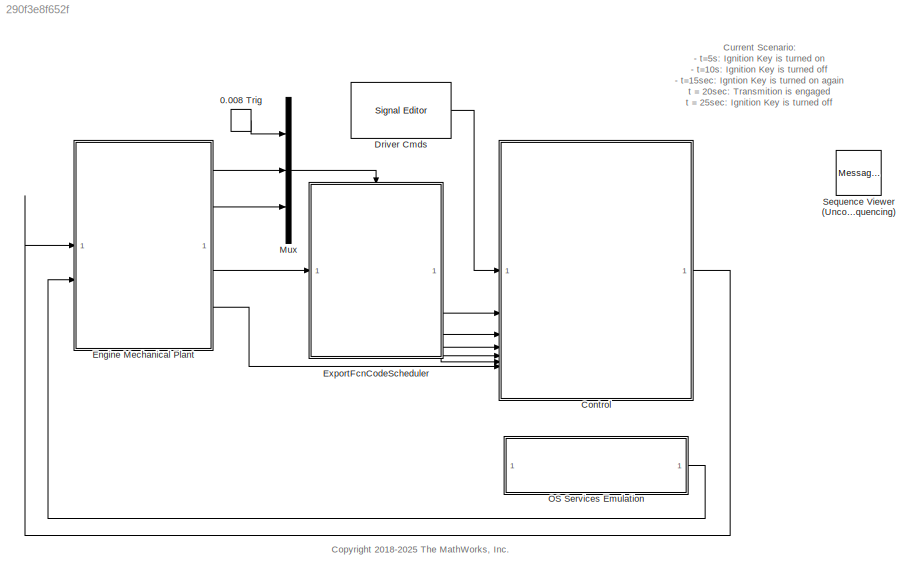
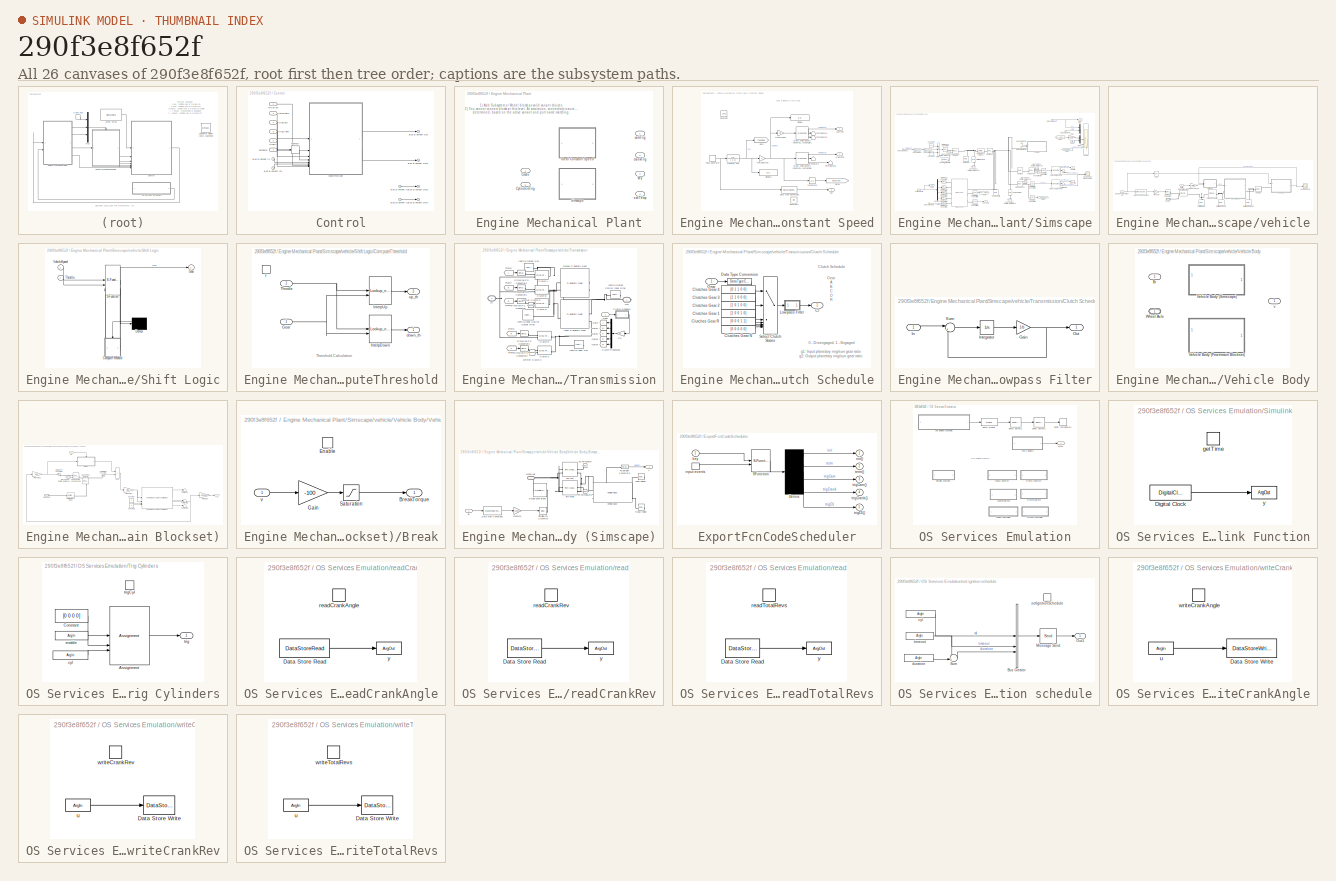
[diagram: thumbnail index - all 26 canvases of the model, root first then tree order]
MODEL slx_290f3e8f652f
KIND model
CONFIG AbsTol = auto
CONFIG EnableMultiTasking = off
CONFIG FixedStep = auto
CONFIG MaxStep = auto
CONFIG MinStep = auto
CONFIG RelTol = 1e-3
CONFIG SampleTimeConstraint = Unconstrained
CONFIG SolverName = VariableStepAuto
CONFIG StartTime = 0.0
CONFIG StopTime = 30
BLOCK [FunctionCallGenerator] 0.008 Trig
  SampleTime = .008
BLOCK [SubSystem] Control
  VariantControl = exportFcnCode
BLOCK [Inport] Control/Bus Element In
BLOCK [Inport] Control/Bus Element In1
BLOCK [Inport] Control/Bus Element In2
BLOCK [Inport] Control/Bus Element In3
BLOCK [Outport] Control/Bus Element Out
  VectorParamsAs1DForOutWhenUnconnected = off
BLOCK [Outport] Control/Bus Element Out2
  VectorParamsAs1DForOutWhenUnconnected = off
BLOCK [Outport] Control/Bus Element Out3
  VectorParamsAs1DForOutWhenUnconnected = off
BLOCK [Outport] Control/Bus Element Out4
  VectorParamsAs1DForOutWhenUnconnected = off
BLOCK [Inport] Control/Initialize
  Port = 2
BLOCK [Memory] Control/Memory
BLOCK [Inport] Control/exhTemp
  Port = 7
BLOCK [ModelReference] Control/exportFcnCode
  ModelEventPortInfo = I:initialize,T:terminate
  ModelNameDialog = exportFcnCode.slx
  ModelReferenceVersion = 14.1
  ScheduleRates = on
  ShowModelInitializePort = on
  ShowModelTerminatePort = on
BLOCK [Inport] Control/terminate
  Port = 3
BLOCK [Inport] Control/trigCam
  Port = 4
BLOCK [Inport] Control/trigCrank
  Port = 5
BLOCK [Inport] Control/trigD1
  Port = 6
BLOCK [Reference] Driver Cmds  REF=SignalEditorBlockLib/Signal Editor
  SourceBlock = SignalEditorBlockLib/Signal Editor
  SourceType = SignalEditor
  UserDataPersistent = on
BLOCK [SubSystem] Engine Mechanical Plant
  LabelModeActiveChoice = SimscapeEngine
  Variant = on
  VariantControlMode = label
BLOCK [Inport] Engine Mechanical Plant/Cmds
BLOCK [Inport] Engine Mechanical Plant/CylindersTrig
  Port = 2
BLOCK [SubSystem] Engine Mechanical Plant/Ideal Constant Speed
  VariantControl = idealEngine
BLOCK [Constant] Engine Mechanical Plant/Ideal Constant Speed/Constant
  Value = 1800
BLOCK [Constant] Engine Mechanical Plant/Ideal Constant Speed/Constant1
  OutDataTypeStr = boolean
  Value = true
BLOCK [S-Function] Engine Mechanical Plant/Ideal Constant Speed/Crank Angle Events (EventOutputType: FunctionCall)
  EnableBusSupport = off
  FunctionName = sfun_angle_events
  LoadFcn = DVG.Registry.registerIcon(...\n'BlockIcon.SFunAngleEvents', ...\nfullfile(matlabroot,'toolbox','simulink','simdemos','simfeatures','slexToothedWheel.svg'))
  Parameters = CrossingAngles, InitialAngle, eventOutputType, clockwiseOnly
  SFcnIsStateOwnerBlock = off
  SFunctionDeploymentMode = off
BLOCK [S-Function] Engine Mechanical Plant/Ideal Constant Speed/Crank Angle Events (EventOutputType: FunctionCall)1
  EnableBusSupport = off
  FunctionName = sfun_angle_events
  LoadFcn = DVG.Registry.registerIcon(...\n'BlockIcon.SFunAngleEvents', ...\nfullfile(matlabroot,'toolbox','simulink','simdemos','simfeatures','slexToothedWheel.svg'))
  Parameters = CrossingAngles, InitialAngle, eventOutputType, clockwiseOnly
  SFcnIsStateOwnerBlock = off
  SFunctionDeploymentMode = off
BLOCK [DataTypeConversion] Engine Mechanical Plant/Ideal Constant Speed/Data Type Conversion
  OutDataTypeStr = boolean
  RndMeth = Floor
  SaturateOnIntegerOverflow = off
BLOCK [Display] Engine Mechanical Plant/Ideal Constant Speed/Display
  Decimation = 1
BLOCK [Display] Engine Mechanical Plant/Ideal Constant Speed/Display1
  Decimation = 1
BLOCK [Goto] Engine Mechanical Plant/Ideal Constant Speed/Goto
  GotoTag = fakeRPM
  TagVisibility = global
BLOCK [Goto] Engine Mechanical Plant/Ideal Constant Speed/Goto1
  GotoTag = fakeCrankAngle
  TagVisibility = global
BLOCK [Integrator] Engine Mechanical Plant/Ideal Constant Speed/Integrator
  WrapState = on
  WrappedStateLowerValue = 0
  WrappedStateUpperValue = 720
BLOCK [DiscretePulseGenerator] Engine Mechanical Plant/Ideal Constant Speed/Pulse Generator
  Amplitude = 1000
  Period = 100 %6.123
  PhaseDelay = 1
  PulseType = Time based
  PulseWidth = 50
BLOCK [Terminator] Engine Mechanical Plant/Ideal Constant Speed/Terminator1
BLOCK [Terminator] Engine Mechanical Plant/Ideal Constant Speed/Terminator2
BLOCK [Terminator] Engine Mechanical Plant/Ideal Constant Speed/Terminator4
BLOCK [Terminator] Engine Mechanical Plant/Ideal Constant Speed/Terminator5
BLOCK [TransferFcn] Engine Mechanical Plant/Ideal Constant Speed/Transfer Fcn
  Denominator = [.2 1]
BLOCK [Outport] Engine Mechanical Plant/Ideal Constant Speed/camTrig
  VectorParamsAs1DForOutWhenUnconnected = off
BLOCK [Outport] Engine Mechanical Plant/Ideal Constant Speed/crankTrig
  Port = 2
  VectorParamsAs1DForOutWhenUnconnected = off
BLOCK [Gain] Engine Mechanical Plant/Ideal Constant Speed/cranktoCam
  Gain = 1/2
BLOCK [Outport] Engine Mechanical Plant/Ideal Constant Speed/key
  Port = 3
  VectorParamsAs1DForOutWhenUnconnected = off
BLOCK [Gain] Engine Mechanical Plant/Ideal Constant Speed/rpm2deg//sec
  Gain = 6
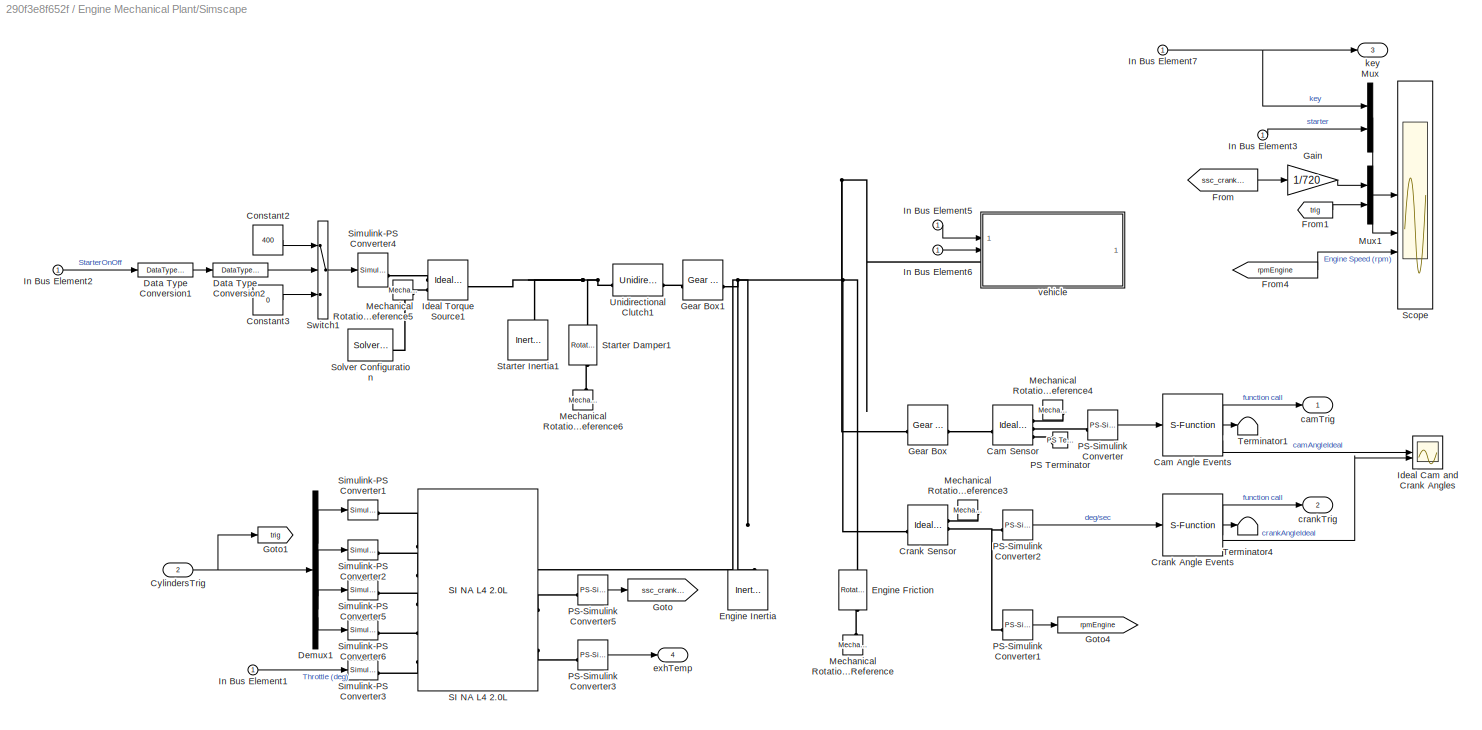
BLOCK [SubSystem] Engine Mechanical Plant/Simscape
  VariantControl = SimscapeEngine
BLOCK [S-Function] Engine Mechanical Plant/Simscape/Cam Angle Events
  EnableBusSupport = off
  FunctionName = sfun_angle_events
  LoadFcn = DVG.Registry.registerIcon(...\n'BlockIcon.SFunAngleEvents', ...\nfullfile(matlabroot,'toolbox','simulink','sfuntemplates','slexToothedWheel.svg'))
  Parameters = CrossingAngles, InitialAngle, eventOutputType, clockwiseOnly
  SFcnIsStateOwnerBlock = off
  SFunctionDeploymentMode = off
BLOCK [Reference] Engine Mechanical Plant/Simscape/Cam Sensor  REF=fl_lib/Mechanical/Mechanical Sensors/Ideal Rotational
Motion Sensor
  SourceBlock = fl_lib/Mechanical/Mechanical Sensors/Ideal Rotational\nMotion Sensor
  SourceType = Ideal Rotational\nMotion Sensor
BLOCK [Constant] Engine Mechanical Plant/Simscape/Constant2
  Value = 400
BLOCK [Constant] Engine Mechanical Plant/Simscape/Constant3
  Value = 0
BLOCK [S-Function] Engine Mechanical Plant/Simscape/Crank Angle Events
  EnableBusSupport = off
  FunctionName = sfun_angle_events
  LoadFcn = DVG.Registry.registerIcon(...\n'BlockIcon.SFunAngleEvents', ...\nfullfile(matlabroot,'toolbox','simulink','simdemos','simfeatures','slexToothedWheel.svg'))
  Parameters = CrossingAngles, InitialAngle, eventOutputType, clockwiseOnly
  SFcnIsStateOwnerBlock = off
  SFunctionDeploymentMode = off
BLOCK [Reference] Engine Mechanical Plant/Simscape/Crank Sensor  REF=fl_lib/Mechanical/Mechanical Sensors/Ideal Rotational
Motion Sensor
  SourceBlock = fl_lib/Mechanical/Mechanical Sensors/Ideal Rotational\nMotion Sensor
  SourceType = Ideal Rotational\nMotion Sensor
BLOCK [Inport] Engine Mechanical Plant/Simscape/CylindersTrig
  Port = 2
BLOCK [DataTypeConversion] Engine Mechanical Plant/Simscape/Data Type Conversion1
  RndMeth = Floor
  SaturateOnIntegerOverflow = off
BLOCK [DataTypeConversion] Engine Mechanical Plant/Simscape/Data Type Conversion2
  RndMeth = Floor
  SaturateOnIntegerOverflow = off
BLOCK [Demux] Engine Mechanical Plant/Simscape/Demux1
BLOCK [Reference] Engine Mechanical Plant/Simscape/Engine Friction  REF=fl_lib/Mechanical/Rotational Elements/Rotational Damper
  AttributesFormatString = %<D>\n%<D_unit>
  NameLocation = right
  SourceBlock = fl_lib/Mechanical/Rotational Elements/Rotational Damper
  SourceType = Rotational Damper
BLOCK [Reference] Engine Mechanical Plant/Simscape/Engine Inertia  REF=fl_lib/Mechanical/Rotational Elements/Inertia
  AttributesFormatString = %<inertia>\n%<inertia_unit>\n%<w_specify>
  NameLocation = right
  SourceBlock = fl_lib/Mechanical/Rotational Elements/Inertia
  SourceType = Inertia
BLOCK [From] Engine Mechanical Plant/Simscape/From
  GotoTag = ssc_crank_pos
  TagVisibility = global
BLOCK [From] Engine Mechanical Plant/Simscape/From1
  GotoTag = trig
BLOCK [From] Engine Mechanical Plant/Simscape/From4
  GotoTag = rpmEngine
BLOCK [Gain] Engine Mechanical Plant/Simscape/Gain
  Gain = 1/720
BLOCK [Reference] Engine Mechanical Plant/Simscape/Gear Box  REF=fl_lib/Mechanical/Mechanisms/Gear Box
  SourceBlock = fl_lib/Mechanical/Mechanisms/Gear Box
  SourceType = Gear Box
BLOCK [Reference] Engine Mechanical Plant/Simscape/Gear Box1  REF=fl_lib/Mechanical/Mechanisms/Gear Box
  AttributesFormatString = %<ratio>
  SourceBlock = fl_lib/Mechanical/Mechanisms/Gear Box
  SourceType = Gear Box
BLOCK [Goto] Engine Mechanical Plant/Simscape/Goto
  GotoTag = ssc_crank_pos
  TagVisibility = global
BLOCK [Goto] Engine Mechanical Plant/Simscape/Goto1
  GotoTag = trig
BLOCK [Goto] Engine Mechanical Plant/Simscape/Goto4
  GotoTag = rpmEngine
BLOCK [Scope] Engine Mechanical Plant/Simscape/Ideal Cam and Crank Angles
  ActiveDisplayYMaximum = 405
  ActiveDisplayYMinimum = -45
  DataLoggingVariableName = ScopeData2
  Floating = off
  GraphicalSettings = {"GraphicalSettings":{"LegacySettings":true,"Style":{"AxesScalingProperties":{"ScaleAxesLimitsAtStop":false},"Style":{"AxesColor":"[0 0 0]","ChannelNames":["",""],"ColorOrder":"[1 1 0.0666666666666667;0.0745098039215686 0.623529411764706 1;1 0.411764705882353 0.16078431372549;0.392156862745098 0.831372549019608 0.0745098039215686;0.717647058823529 0.274509803921569 1;0.0588235294117647 1 1;1 0.074...<+455ch>
  LayoutDimensionsString = [2 1]
  MultipleDisplayCache = [{"MaxYLimMag":405,"MaxYLimReal":405,"MinYLimMag":0,"MinYLimReal":-45,"PlotAsMagnitudePhase":false,"ShowGrid":true,"ShowLegend":false,"Title":"%<SignalLabel>","YLabel":""},{"MaxYLimMag":10,"MaxYLimReal":405,"MinYLimMag":0,"MinYLimReal":-45,"PlotAsMagnitudePhase":false,"ShowGrid":true,"ShowLegend":false,"Title":"%<SignalLabel>","YLabel":""}]
  NumInputPorts = 2
  WasSavedAsWebScope = on
  WindowPosition = [1167 284 715 527]
BLOCK [Reference] Engine Mechanical Plant/Simscape/Ideal Torque Source1  REF=fl_lib/Mechanical/Mechanical Sources/Ideal Torque Source
  SourceBlock = fl_lib/Mechanical/Mechanical Sources/Ideal Torque Source
  SourceType = Ideal Torque Source
BLOCK [Inport] Engine Mechanical Plant/Simscape/In Bus Element1
BLOCK [Inport] Engine Mechanical Plant/Simscape/In Bus Element2
BLOCK [Inport] Engine Mechanical Plant/Simscape/In Bus Element3
BLOCK [Inport] Engine Mechanical Plant/Simscape/In Bus Element5
BLOCK [Inport] Engine Mechanical Plant/Simscape/In Bus Element6
BLOCK [Inport] Engine Mechanical Plant/Simscape/In Bus Element7
BLOCK [Reference] Engine Mechanical Plant/Simscape/Mechanical Rotational Reference  REF=fl_lib/Mechanical/Rotational Elements/Mechanical
Rotational Reference
  NameLocation = right
  SourceBlock = fl_lib/Mechanical/Rotational Elements/Mechanical\nRotational Reference
  SourceType = Mechanical\nRotational Reference
BLOCK [Reference] Engine Mechanical Plant/Simscape/Mechanical Rotational Reference3  REF=fl_lib/Mechanical/Rotational Elements/Mechanical
Rotational Reference
  SourceBlock = fl_lib/Mechanical/Rotational Elements/Mechanical\nRotational Reference
  SourceType = Mechanical\nRotational Reference
BLOCK [Reference] Engine Mechanical Plant/Simscape/Mechanical Rotational Reference4  REF=fl_lib/Mechanical/Rotational Elements/Mechanical
Rotational Reference
  SourceBlock = fl_lib/Mechanical/Rotational Elements/Mechanical\nRotational Reference
  SourceType = Mechanical\nRotational Reference
BLOCK [Reference] Engine Mechanical Plant/Simscape/Mechanical Rotational Reference5  REF=fl_lib/Mechanical/Rotational Elements/Mechanical
Rotational Reference
  SourceBlock = fl_lib/Mechanical/Rotational Elements/Mechanical\nRotational Reference
  SourceType = Mechanical\nRotational Reference
BLOCK [Reference] Engine Mechanical Plant/Simscape/Mechanical Rotational Reference6  REF=fl_lib/Mechanical/Rotational Elements/Mechanical
Rotational Reference
  NameLocation = right
  SourceBlock = fl_lib/Mechanical/Rotational Elements/Mechanical\nRotational Reference
  SourceType = Mechanical\nRotational Reference
BLOCK [Mux] Engine Mechanical Plant/Simscape/Mux
  DisplayOption = bar
  Inputs = 2
BLOCK [Mux] Engine Mechanical Plant/Simscape/Mux1
  DisplayOption = bar
  Inputs = 2
BLOCK [Reference] Engine Mechanical Plant/Simscape/PS Terminator  REF=fl_lib/Physical Signals/Sinks/PS Terminator
  SourceBlock = fl_lib/Physical Signals/Sinks/PS Terminator
  SourceType = PS Terminator
BLOCK [Reference] Engine Mechanical Plant/Simscape/PS-Simulink Converter  REF=nesl_utility/PS-Simulink
Converter
  SourceBlock = nesl_utility/PS-Simulink\nConverter
  SourceType = PS-Simulink\nConverter
BLOCK [Reference] Engine Mechanical Plant/Simscape/PS-Simulink Converter1  REF=nesl_utility/PS-Simulink
Converter
  SourceBlock = nesl_utility/PS-Simulink\nConverter
  SourceType = PS-Simulink\nConverter
BLOCK [Reference] Engine Mechanical Plant/Simscape/PS-Simulink Converter2  REF=nesl_utility/PS-Simulink
Converter
  SourceBlock = nesl_utility/PS-Simulink\nConverter
  SourceType = PS-Simulink\nConverter
BLOCK [Reference] Engine Mechanical Plant/Simscape/PS-Simulink Converter3  REF=nesl_utility/PS-Simulink
Converter
  AttributesFormatString = %<Unit>
  SourceBlock = nesl_utility/PS-Simulink\nConverter
  SourceType = PS-Simulink\nConverter
BLOCK [Reference] Engine Mechanical Plant/Simscape/PS-Simulink Converter5  REF=nesl_utility/PS-Simulink
Converter
  SourceBlock = nesl_utility/PS-Simulink\nConverter
  SourceType = PS-Simulink\nConverter
BLOCK [Reference] Engine Mechanical Plant/Simscape/SI NA L4 2.0L  REF=engine_lib/SI NA L4 2.0L  (lib defined in slx_c4798424b846)
  SourceBlock = engine_lib/SI NA L4 2.0L
  SourceType = SI NA L4 2.0L
BLOCK [Scope] Engine Mechanical Plant/Simscape/Scope
  ActiveDisplayYMaximum = 1.125
  ActiveDisplayYMinimum = -0.125
  DataLoggingVariableName = ScopeData1
  Floating = off
  GraphicalSettings = {"Style":{"BackgroundColor":[0.12941176470588237,0.12941176470588237,0.12941176470588237],"AxesColor":[0.07058823529411765,0.07058823529411765,0.07058823529411765],"LabelsColor":[0.8509803921568627,0.8509803921568627,0.8509803921568627],"PreserveColors":false,"Visible":[true,true,true,true,true,true,true,true],"LineStyle":["-","-","-","-","-","-","-","-"],"LineWidth":[1.5,1.5,1.5,1.5,1.5,1.5,1.5,1...<+3366ch>
  LayoutDimensionsString = [3 1]
  MultipleDisplayCache = [{"MaxYLimMag":1.125,"MaxYLimReal":1.125,"MinYLimMag":0,"MinYLimReal":-0.125,"PlotAsMagnitudePhase":false,"ShowGrid":true,"ShowLegend":true,"Title":"%<SignalLabel>","YLabel":""},{"MaxYLimMag":10,"MaxYLimReal":1.125,"MinYLimMag":0,"MinYLimReal":-0.125,"PlotAsMagnitudePhase":false,"ShowGrid":true,"ShowLegend":false,"Title":"%<SignalLabel>","YLabel":""},{"MaxYLimMag":10,"MaxYLimReal":3171.80302,"MinY...<+137ch>
  NumInputPorts = 3
  ScopeFrameLocation = window
  ShowLegend = on
  WasSavedAsWebScope = on
  WindowPosition = [1322.000000,-46.000000,560.000000,420.000000,]
BLOCK [Reference] Engine Mechanical Plant/Simscape/Simulink-PS Converter1  REF=nesl_utility/Simulink-PS
Converter
  SourceBlock = nesl_utility/Simulink-PS\nConverter
  SourceType = Simulink-PS\nConverter
BLOCK [Reference] Engine Mechanical Plant/Simscape/Simulink-PS Converter2  REF=nesl_utility/Simulink-PS
Converter
  SourceBlock = nesl_utility/Simulink-PS\nConverter
  SourceType = Simulink-PS\nConverter
BLOCK [Reference] Engine Mechanical Plant/Simscape/Simulink-PS Converter3  REF=nesl_utility/Simulink-PS
Converter
  AttributesFormatString = %<Unit>
  SourceBlock = nesl_utility/Simulink-PS\nConverter
  SourceType = Simulink-PS\nConverter
BLOCK [Reference] Engine Mechanical Plant/Simscape/Simulink-PS Converter4  REF=nesl_utility/Simulink-PS
Converter
  AttributesFormatString = %<Unit>
  SourceBlock = nesl_utility/Simulink-PS\nConverter
  SourceType = Simulink-PS\nConverter
BLOCK [Reference] Engine Mechanical Plant/Simscape/Simulink-PS Converter5  REF=nesl_utility/Simulink-PS
Converter
  SourceBlock = nesl_utility/Simulink-PS\nConverter
  SourceType = Simulink-PS\nConverter
BLOCK [Reference] Engine Mechanical Plant/Simscape/Simulink-PS Converter6  REF=nesl_utility/Simulink-PS
Converter
  SourceBlock = nesl_utility/Simulink-PS\nConverter
  SourceType = Simulink-PS\nConverter
BLOCK [Reference] Engine Mechanical Plant/Simscape/Solver Configuration  REF=nesl_utility/Solver
Configuration
  AttributesFormatString = Local solver %<UseLocalSolver>
  SourceBlock = nesl_utility/Solver\nConfiguration
  SourceType = Solver\nConfiguration
BLOCK [Reference] Engine Mechanical Plant/Simscape/Starter Damper1  REF=fl_lib/Mechanical/Rotational Elements/Rotational Damper
  AttributesFormatString = %<D>\n%<D_unit>
  NameLocation = right
  SourceBlock = fl_lib/Mechanical/Rotational Elements/Rotational Damper
  SourceType = Rotational Damper
BLOCK [Reference] Engine Mechanical Plant/Simscape/Starter Inertia1  REF=fl_lib/Mechanical/Rotational Elements/Inertia
  AttributesFormatString = %<inertia>\n%<inertia_unit>
  NameLocation = left
  SourceBlock = fl_lib/Mechanical/Rotational Elements/Inertia
  SourceType = Inertia
BLOCK [Switch] Engine Mechanical Plant/Simscape/Switch1
  Criteria = u2 ~= 0
  InputSameDT = off
  SaturateOnIntegerOverflow = off
BLOCK [Terminator] Engine Mechanical Plant/Simscape/Terminator1
BLOCK [Terminator] Engine Mechanical Plant/Simscape/Terminator4
BLOCK [Reference] Engine Mechanical Plant/Simscape/Unidirectional Clutch1  REF=sdl_lib/Clutches/Unidirectional
Clutch
  SourceBlock = sdl_lib/Clutches/Unidirectional\nClutch
  SourceType = Unidirectional\nClutch
BLOCK [Outport] Engine Mechanical Plant/Simscape/camTrig
  VectorParamsAs1DForOutWhenUnconnected = off
BLOCK [Outport] Engine Mechanical Plant/Simscape/crankTrig
  Port = 2
  VectorParamsAs1DForOutWhenUnconnected = off
BLOCK [Outport] Engine Mechanical Plant/Simscape/exhTemp
  Port = 4
  VectorParamsAs1DForOutWhenUnconnected = off
BLOCK [Outport] Engine Mechanical Plant/Simscape/key
  Port = 3
  VectorParamsAs1DForOutWhenUnconnected = off
BLOCK [SubSystem] Engine Mechanical Plant/Simscape/vehicle
BLOCK [DataTypeConversion] Engine Mechanical Plant/Simscape/vehicle/Data Type Conversion
  OutDataTypeStr = double
  RndMeth = Floor
  SaturateOnIntegerOverflow = off
BLOCK [Reference] Engine Mechanical Plant/Simscape/vehicle/Disk Friction Clutch  REF=sdl_lib/Clutches/Disc Friction Clutch
  SourceBlock = sdl_lib/Clutches/Disc Friction Clutch
  SourceType = Disc Friction Clutch
BLOCK [Inport] Engine Mechanical Plant/Simscape/vehicle/Engage Transmission
  Port = 2
BLOCK [PMIOPort] Engine Mechanical Plant/Simscape/vehicle/Engine
  Side = Left
BLOCK [Reference] Engine Mechanical Plant/Simscape/vehicle/Gear Box  REF=fl_lib/Mechanical/Mechanisms/Gear Box
  SourceBlock = fl_lib/Mechanical/Mechanisms/Gear Box
  SourceType = Gear Box
BLOCK [Reference] Engine Mechanical Plant/Simscape/vehicle/Inertia Impeller  REF=fl_lib/Mechanical/Rotational Elements/Inertia
  NameLocation = left
  SourceBlock = fl_lib/Mechanical/Rotational Elements/Inertia
  SourceType = Inertia
BLOCK [Reference] Engine Mechanical Plant/Simscape/vehicle/Inertia Input Shaft  REF=fl_lib/Mechanical/Rotational Elements/Inertia
  NameLocation = right
  SourceBlock = fl_lib/Mechanical/Rotational Elements/Inertia
  SourceType = Inertia
BLOCK [Reference] Engine Mechanical Plant/Simscape/vehicle/Inertia Output Shaft  REF=fl_lib/Mechanical/Rotational Elements/Inertia
  NameLocation = right
  SourceBlock = fl_lib/Mechanical/Rotational Elements/Inertia
  SourceType = Inertia
BLOCK [Logic] Engine Mechanical Plant/Simscape/vehicle/NOT
  AllPortsSameDT = off
  IconShape = distinctive
  Operator = NOT
  OutDataTypeStr = boolean
BLOCK [Gain] Engine Mechanical Plant/Simscape/vehicle/Pressure
  Gain = 1e7
BLOCK [SubSystem] Engine Mechanical Plant/Simscape/vehicle/Shift Logic
  ErrorFcn = Stateflow.Translate.translate
  NameLocation = top
  PermitHierarchicalResolution = ExplicitOnly
  SFBlockType = Chart
  Tag = PublishSubsystem
  TreatAsAtomicUnit = on
BLOCK [Demux] Engine Mechanical Plant/Simscape/vehicle/Shift Logic/ Demux 
  Outputs = 1
BLOCK [S-Function] Engine Mechanical Plant/Simscape/vehicle/Shift Logic/ SFunction 
  EnableBusSupport = off
  FunctionName = sf_sfun
  Parameters = TWAIT
  PortCounts = [4 4]
  SFcnIsStateOwnerBlock = off
  SFunctionDeploymentMode = off
  Tag = Stateflow S-Function 3
BLOCK [SubSystem] Engine Mechanical Plant/Simscape/vehicle/Shift Logic/ComputeThreshold
  PreDeleteFcn = Stateflow.SLINSF.SimulinkMan.removePreDeleteFcn
  UndoDeleteFcn = Stateflow.SLINSF.SimulinkMan.restorePreDeleteFcn
BLOCK [Inport] Engine Mechanical Plant/Simscape/vehicle/Shift Logic/ComputeThreshold/Gear
BLOCK [Lookup_n-D] Engine Mechanical Plant/Simscape/vehicle/Shift Logic/ComputeThreshold/InterpDown
  BreakpointsForDimension1 = DOWN_TH_BP
  BreakpointsForDimension2 = [1:4]
  InputPortMap = u0,u1
  InputSameDT = off
  LockScale = on
  LookupTableObject = ''
  OutDataTypeStr = double
  Table = DOWN_TABLE
BLOCK [Lookup_n-D] Engine Mechanical Plant/Simscape/vehicle/Shift Logic/ComputeThreshold/InterpUp
  BreakpointsForDimension1 = UP_TH_BP
  BreakpointsForDimension2 = [1,2,3,4]
  InputPortMap = u0,u1
  InputSameDT = off
  LockScale = on
  LookupTableObject = ''
  OutDataTypeStr = double
  Table = UP_TABLE
BLOCK [Inport] Engine Mechanical Plant/Simscape/vehicle/Shift Logic/ComputeThreshold/Throttle
  Port = 2
BLOCK [Outport] Engine Mechanical Plant/Simscape/vehicle/Shift Logic/ComputeThreshold/down_th
  InitialOutput = 0
  VectorParamsAs1DForOutWhenUnconnected = off
BLOCK [TriggerPort] Engine Mechanical Plant/Simscape/vehicle/Shift Logic/ComputeThreshold/f
  CopyFcn = Stateflow.SLINSF.SimulinkMan.removeBlockPreDeleteFcn
  PreDeleteFcn = Stateflow.SLINSF.SimulinkMan.unsafePredeleteFcn
  StatesWhenEnabling = held
  TriggerType = function-call
  VariantControl = Variant
BLOCK [Outport] Engine Mechanical Plant/Simscape/vehicle/Shift Logic/ComputeThreshold/up_th
  InitialOutput = 0
  Port = 2
  VectorParamsAs1DForOutWhenUnconnected = off
BLOCK [Outport] Engine Mechanical Plant/Simscape/vehicle/Shift Logic/Gear
  VectorParamsAs1DForOutWhenUnconnected = off
BLOCK [Inport] Engine Mechanical Plant/Simscape/vehicle/Shift Logic/Throttle
  Port = 2
BLOCK [Inport] Engine Mechanical Plant/Simscape/vehicle/Shift Logic/VehicleSpeed
BLOCK [Reference] Engine Mechanical Plant/Simscape/vehicle/Simulink-PS Converter  REF=nesl_utility/Simulink-PS
Converter
  SourceBlock = nesl_utility/Simulink-PS\nConverter
  SourceType = Simulink-PS\nConverter
BLOCK [Reference] Engine Mechanical Plant/Simscape/vehicle/Torque Converter  REF=sdl_lib/Couplings & Drives/Torque Converter
  SourceBlock = sdl_lib/Couplings & Drives/Torque Converter
  SourceType = Torque Converter
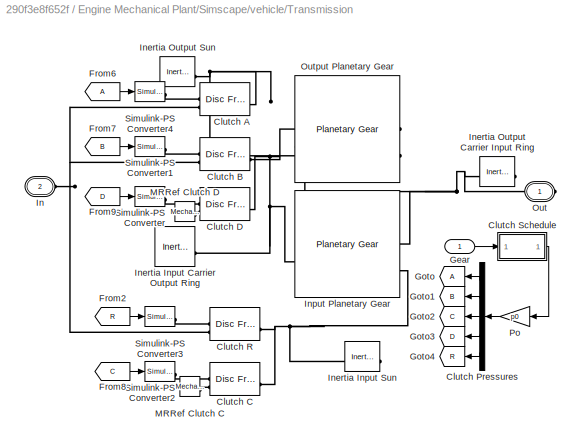
BLOCK [SubSystem] Engine Mechanical Plant/Simscape/vehicle/Transmission
  OpenFcn = open_system(gcbh,'force');
  Tag = PublishSubsystem
BLOCK [Reference] Engine Mechanical Plant/Simscape/vehicle/Transmission/Clutch A  REF=sdl_lib/Clutches/Disc Friction Clutch
  SourceBlock = sdl_lib/Clutches/Disc Friction Clutch
  SourceType = Disc Friction Clutch
BLOCK [Reference] Engine Mechanical Plant/Simscape/vehicle/Transmission/Clutch B  REF=sdl_lib/Clutches/Disc Friction Clutch
  SourceBlock = sdl_lib/Clutches/Disc Friction Clutch
  SourceType = Disc Friction Clutch
BLOCK [Reference] Engine Mechanical Plant/Simscape/vehicle/Transmission/Clutch C  REF=sdl_lib/Clutches/Disc Friction Clutch
  SourceBlock = sdl_lib/Clutches/Disc Friction Clutch
  SourceType = Disc Friction Clutch
BLOCK [Reference] Engine Mechanical Plant/Simscape/vehicle/Transmission/Clutch D  REF=sdl_lib/Clutches/Disc Friction Clutch
  SourceBlock = sdl_lib/Clutches/Disc Friction Clutch
  SourceType = Disc Friction Clutch
BLOCK [Demux] Engine Mechanical Plant/Simscape/vehicle/Transmission/Clutch Pressures
  Outputs = 5
BLOCK [Reference] Engine Mechanical Plant/Simscape/vehicle/Transmission/Clutch R  REF=sdl_lib/Clutches/Disc Friction Clutch
  SourceBlock = sdl_lib/Clutches/Disc Friction Clutch
  SourceType = Disc Friction Clutch
BLOCK [SubSystem] Engine Mechanical Plant/Simscape/vehicle/Transmission/Clutch Schedule
  Tag = PublishSubsystem
BLOCK [Outport] Engine Mechanical Plant/Simscape/vehicle/Transmission/Clutch Schedule/Cl
  VectorParamsAs1DForOutWhenUnconnected = off
BLOCK [Constant] Engine Mechanical Plant/Simscape/vehicle/Transmission/Clutch Schedule/Clutches Gear 1
  SampleTime = 0
  Value = [1 0 0 1 0]
BLOCK [Constant] Engine Mechanical Plant/Simscape/vehicle/Transmission/Clutch Schedule/Clutches Gear 2
  SampleTime = 0
  Value = [1 0 1 0 0]
BLOCK [Constant] Engine Mechanical Plant/Simscape/vehicle/Transmission/Clutch Schedule/Clutches Gear 3
  SampleTime = 0
  Value = [1 1 0 0 0]
BLOCK [Constant] Engine Mechanical Plant/Simscape/vehicle/Transmission/Clutch Schedule/Clutches Gear 4
  SampleTime = 0
  Value = [0 1 1 0 0]
BLOCK [Constant] Engine Mechanical Plant/Simscape/vehicle/Transmission/Clutch Schedule/Clutches Gear N
  SampleTime = 0
  Value = [0 0 0 0 0]
BLOCK [Constant] Engine Mechanical Plant/Simscape/vehicle/Transmission/Clutch Schedule/Clutches Gear R
  SampleTime = 0
  Value = [0 0 0 1 1]
BLOCK [DataTypeConversion] Engine Mechanical Plant/Simscape/vehicle/Transmission/Clutch Schedule/Data Type Conversion
  NameLocation = top
  RndMeth = Floor
  SaturateOnIntegerOverflow = off
BLOCK [Inport] Engine Mechanical Plant/Simscape/vehicle/Transmission/Clutch Schedule/Gear
  NameLocation = top
BLOCK [SubSystem] Engine Mechanical Plant/Simscape/vehicle/Transmission/Clutch Schedule/Lowpass Filter
BLOCK [Gain] Engine Mechanical Plant/Simscape/vehicle/Transmission/Clutch Schedule/Lowpass Filter/Gain
  Gain = 1/b
BLOCK [Inport] Engine Mechanical Plant/Simscape/vehicle/Transmission/Clutch Schedule/Lowpass Filter/In
BLOCK [Integrator] Engine Mechanical Plant/Simscape/vehicle/Transmission/Clutch Schedule/Lowpass Filter/Integrator
  InitialCondition = x_initial*b
BLOCK [Outport] Engine Mechanical Plant/Simscape/vehicle/Transmission/Clutch Schedule/Lowpass Filter/Out
  VectorParamsAs1DForOutWhenUnconnected = off
BLOCK [Sum] Engine Mechanical Plant/Simscape/vehicle/Transmission/Clutch Schedule/Lowpass Filter/Sum
  InputSameDT = on
  Inputs = |+-
  OutDataTypeStr = Inherit: Same as first input
  SaturateOnIntegerOverflow = on
BLOCK [MultiPortSwitch] Engine Mechanical Plant/Simscape/vehicle/Transmission/Clutch Schedule/Select Clutch States
  DataPortIndices = {4,3,2,1,-1,0}
  DataPortOrder = Specify indices
  DiagnosticForDefault = None
  InputSameDT = off
  SaturateOnIntegerOverflow = off
BLOCK [From] Engine Mechanical Plant/Simscape/vehicle/Transmission/From2
  CloseFcn = tagdialog Close
  GotoTag = R
BLOCK [From] Engine Mechanical Plant/Simscape/vehicle/Transmission/From6
  CloseFcn = tagdialog Close
BLOCK [From] Engine Mechanical Plant/Simscape/vehicle/Transmission/From7
  CloseFcn = tagdialog Close
  GotoTag = B
BLOCK [From] Engine Mechanical Plant/Simscape/vehicle/Transmission/From8
  CloseFcn = tagdialog Close
  GotoTag = C
BLOCK [From] Engine Mechanical Plant/Simscape/vehicle/Transmission/From9
  CloseFcn = tagdialog Close
  GotoTag = D
BLOCK [Inport] Engine Mechanical Plant/Simscape/vehicle/Transmission/Gear
  NameLocation = top
BLOCK [Goto] Engine Mechanical Plant/Simscape/vehicle/Transmission/Goto
BLOCK [Goto] Engine Mechanical Plant/Simscape/vehicle/Transmission/Goto1
  GotoTag = B
BLOCK [Goto] Engine Mechanical Plant/Simscape/vehicle/Transmission/Goto2
  GotoTag = C
BLOCK [Goto] Engine Mechanical Plant/Simscape/vehicle/Transmission/Goto3
  GotoTag = D
BLOCK [Goto] Engine Mechanical Plant/Simscape/vehicle/Transmission/Goto4
  GotoTag = R
BLOCK [PMIOPort] Engine Mechanical Plant/Simscape/vehicle/Transmission/In
  Port = 2
  Side = Left
  Tag = PMCPort
BLOCK [Reference] Engine Mechanical Plant/Simscape/vehicle/Transmission/Inertia Input Carrier Output Ring  REF=fl_lib/Mechanical/Rotational Elements/Inertia
  SourceBlock = fl_lib/Mechanical/Rotational Elements/Inertia
  SourceType = Inertia
BLOCK [Reference] Engine Mechanical Plant/Simscape/vehicle/Transmission/Inertia Input Sun  REF=fl_lib/Mechanical/Rotational Elements/Inertia
  SourceBlock = fl_lib/Mechanical/Rotational Elements/Inertia
  SourceType = Inertia
BLOCK [Reference] Engine Mechanical Plant/Simscape/vehicle/Transmission/Inertia Output Carrier Input Ring  REF=fl_lib/Mechanical/Rotational Elements/Inertia
  NameLocation = top
  SourceBlock = fl_lib/Mechanical/Rotational Elements/Inertia
  SourceType = Inertia
BLOCK [Reference] Engine Mechanical Plant/Simscape/vehicle/Transmission/Inertia Output Sun  REF=fl_lib/Mechanical/Rotational Elements/Inertia
  NameLocation = top
  SourceBlock = fl_lib/Mechanical/Rotational Elements/Inertia
  SourceType = Inertia
BLOCK [Reference] Engine Mechanical Plant/Simscape/vehicle/Transmission/Input Planetary Gear   REF=sdl_lib/Gears/Planetary Gear
  SourceBlock = sdl_lib/Gears/Planetary Gear
  SourceType = Planetary Gear
BLOCK [Reference] Engine Mechanical Plant/Simscape/vehicle/Transmission/MRRef Clutch C  REF=fl_lib/Mechanical/Rotational Elements/Mechanical
Rotational Reference
  SourceBlock = fl_lib/Mechanical/Rotational Elements/Mechanical\nRotational Reference
  SourceType = Mechanical\nRotational Reference
BLOCK [Reference] Engine Mechanical Plant/Simscape/vehicle/Transmission/MRRef Clutch D  REF=fl_lib/Mechanical/Rotational Elements/Mechanical
Rotational Reference
  SourceBlock = fl_lib/Mechanical/Rotational Elements/Mechanical\nRotational Reference
  SourceType = Mechanical\nRotational Reference
BLOCK [PMIOPort] Engine Mechanical Plant/Simscape/vehicle/Transmission/Out
  NameLocation = top
  Side = Right
  Tag = PMCPort
BLOCK [Reference] Engine Mechanical Plant/Simscape/vehicle/Transmission/Output Planetary Gear  REF=sdl_lib/Gears/Planetary Gear
  NameLocation = top
  SourceBlock = sdl_lib/Gears/Planetary Gear
  SourceType = Planetary Gear
BLOCK [Gain] Engine Mechanical Plant/Simscape/vehicle/Transmission/Po
  Gain = p0
BLOCK [Reference] Engine Mechanical Plant/Simscape/vehicle/Transmission/Simulink-PS Converter  REF=nesl_utility/Simulink-PS
Converter
  NameLocation = top
  SourceBlock = nesl_utility/Simulink-PS\nConverter
  SourceType = Simulink-PS\nConverter
BLOCK [Reference] Engine Mechanical Plant/Simscape/vehicle/Transmission/Simulink-PS Converter1  REF=nesl_utility/Simulink-PS
Converter
  SourceBlock = nesl_utility/Simulink-PS\nConverter
  SourceType = Simulink-PS\nConverter
BLOCK [Reference] Engine Mechanical Plant/Simscape/vehicle/Transmission/Simulink-PS Converter2  REF=nesl_utility/Simulink-PS
Converter
  NameLocation = top
  SourceBlock = nesl_utility/Simulink-PS\nConverter
  SourceType = Simulink-PS\nConverter
BLOCK [Reference] Engine Mechanical Plant/Simscape/vehicle/Transmission/Simulink-PS Converter3  REF=nesl_utility/Simulink-PS
Converter
  SourceBlock = nesl_utility/Simulink-PS\nConverter
  SourceType = Simulink-PS\nConverter
BLOCK [Reference] Engine Mechanical Plant/Simscape/vehicle/Transmission/Simulink-PS Converter4  REF=nesl_utility/Simulink-PS
Converter
  SourceBlock = nesl_utility/Simulink-PS\nConverter
  SourceType = Simulink-PS\nConverter
BLOCK [SubSystem] Engine Mechanical Plant/Simscape/vehicle/Vehicle Body
  LabelModeActiveChoice = Simscape
  Variant = on
  VariantControl = Variant1
  VariantControlMode = label
BLOCK [PMIOPort] Engine Mechanical Plant/Simscape/vehicle/Vehicle Body/ Wheel Axle
  Side = Left
BLOCK [Outport] Engine Mechanical Plant/Simscape/vehicle/Vehicle Body/ v
  VectorParamsAs1DForOutWhenUnconnected = off
BLOCK [Inport] Engine Mechanical Plant/Simscape/vehicle/Vehicle Body/Br 
BLOCK [SubSystem] Engine Mechanical Plant/Simscape/vehicle/Vehicle Body/Vehicle Body (Powertrain Blockset)
  VariantControl = PTBS
BLOCK [PMIOPort] Engine Mechanical Plant/Simscape/vehicle/Vehicle Body/Vehicle Body (Powertrain Blockset)/ Wheel Axle
  Side = Left
BLOCK [Inport] Engine Mechanical Plant/Simscape/vehicle/Vehicle Body/Vehicle Body (Powertrain Blockset)/Br 
BLOCK [SubSystem] Engine Mechanical Plant/Simscape/vehicle/Vehicle Body/Vehicle Body (Powertrain Blockset)/Break
BLOCK [Outport] Engine Mechanical Plant/Simscape/vehicle/Vehicle Body/Vehicle Body (Powertrain Blockset)/Break/BreakTorque
  InitialOutput = 0
  OutputWhenDisabled = reset
  VectorParamsAs1DForOutWhenUnconnected = off
BLOCK [EnablePort] Engine Mechanical Plant/Simscape/vehicle/Vehicle Body/Vehicle Body (Powertrain Blockset)/Break/Enable
BLOCK [Gain] Engine Mechanical Plant/Simscape/vehicle/Vehicle Body/Vehicle Body (Powertrain Blockset)/Break/Gain
  Gain = -100
BLOCK [Saturate] Engine Mechanical Plant/Simscape/vehicle/Vehicle Body/Vehicle Body (Powertrain Blockset)/Break/Saturation
  LowerLimit = -inf
  UpperLimit = 0
BLOCK [Inport] Engine Mechanical Plant/Simscape/vehicle/Vehicle Body/Vehicle Body (Powertrain Blockset)/Break/v
BLOCK [Constant] Engine Mechanical Plant/Simscape/vehicle/Vehicle Body/Vehicle Body (Powertrain Blockset)/Constant
  Value = 0
BLOCK [Constant] Engine Mechanical Plant/Simscape/vehicle/Vehicle Body/Vehicle Body (Powertrain Blockset)/Constant1
  Value = 0
BLOCK [Reference] Engine Mechanical Plant/Simscape/vehicle/Vehicle Body/Vehicle Body (Powertrain Blockset)/Ideal Angular Velocity Source  REF=fl_lib/Mechanical/Mechanical Sources/Ideal Angular
Velocity Source
  SourceBlock = fl_lib/Mechanical/Mechanical Sources/Ideal Angular\nVelocity Source
  SourceType = Ideal Angular\nVelocity Source
BLOCK [Reference] Engine Mechanical Plant/Simscape/vehicle/Vehicle Body/Vehicle Body (Powertrain Blockset)/Ideal Torque Sensor  REF=fl_lib/Mechanical/Mechanical Sensors/Ideal Torque Sensor
  NameLocation = left
  SourceBlock = fl_lib/Mechanical/Mechanical Sensors/Ideal Torque Sensor
  SourceType = Ideal Torque Sensor
BLOCK [Reference] Engine Mechanical Plant/Simscape/vehicle/Vehicle Body/Vehicle Body (Powertrain Blockset)/Mechanical Rotational Reference  REF=fl_lib/Mechanical/Rotational Elements/Mechanical
Rotational Reference
  NameLocation = top
  SourceBlock = fl_lib/Mechanical/Rotational Elements/Mechanical\nRotational Reference
  SourceType = Mechanical\nRotational Reference
BLOCK [Reference] Engine Mechanical Plant/Simscape/vehicle/Vehicle Body/Vehicle Body (Powertrain Blockset)/PS-Simulink Converter  REF=nesl_utility/PS-Simulink
Converter
  SourceBlock = nesl_utility/PS-Simulink\nConverter
  SourceType = PS-Simulink\nConverter
BLOCK [Reference] Engine Mechanical Plant/Simscape/vehicle/Vehicle Body/Vehicle Body (Powertrain Blockset)/Simulink-PS Converter1  REF=nesl_utility/Simulink-PS
Converter
  SourceBlock = nesl_utility/Simulink-PS\nConverter
  SourceType = Simulink-PS\nConverter
BLOCK [Sum] Engine Mechanical Plant/Simscape/vehicle/Vehicle Body/Vehicle Body (Powertrain Blockset)/Sum
  IconShape = rectangular
BLOCK [Terminator] Engine Mechanical Plant/Simscape/vehicle/Vehicle Body/Vehicle Body (Powertrain Blockset)/Terminator
BLOCK [Terminator] Engine Mechanical Plant/Simscape/vehicle/Vehicle Body/Vehicle Body (Powertrain Blockset)/Terminator1
BLOCK [Terminator] Engine Mechanical Plant/Simscape/vehicle/Vehicle Body/Vehicle Body (Powertrain Blockset)/Terminator2
BLOCK [Gain] Engine Mechanical Plant/Simscape/vehicle/Vehicle Body/Vehicle Body (Powertrain Blockset)/Tire Radius
  Gain = 1/0.3
BLOCK [Gain] Engine Mechanical Plant/Simscape/vehicle/Vehicle Body/Vehicle Body (Powertrain Blockset)/Tire Radius1
  Gain = 1/0.3
BLOCK [Reference] Engine Mechanical Plant/Simscape/vehicle/Vehicle Body/Vehicle Body (Powertrain Blockset)/Unidirectional Clutch  REF=sdl_lib/Clutches/Unidirectional
Clutch
  SourceBlock = sdl_lib/Clutches/Unidirectional\nClutch
  SourceType = Unidirectional\nClutch
BLOCK [Reference] Engine Mechanical Plant/Simscape/vehicle/Vehicle Body/Vehicle Body (Powertrain Blockset)/Vehicle Body 1DOF Longitudinal  REF=autolibshared/Vehicle Body 1DOF Longitudinal
  SourceBlock = autolibshared/Vehicle Body 1DOF Longitudinal
  SourceType = Vehicle Body 1DOF Longitudinal
BLOCK [Gain] Engine Mechanical Plant/Simscape/vehicle/Vehicle Body/Vehicle Body (Powertrain Blockset)/m//s to mph
  Gain = 2.23694
BLOCK [Outport] Engine Mechanical Plant/Simscape/vehicle/Vehicle Body/Vehicle Body (Powertrain Blockset)/v
  VectorParamsAs1DForOutWhenUnconnected = off
BLOCK [SubSystem] Engine Mechanical Plant/Simscape/vehicle/Vehicle Body/Vehicle Body (Simscape)
  Tag = PublishSubsystem
  VariantControl = Simscape
BLOCK [PMIOPort] Engine Mechanical Plant/Simscape/vehicle/Vehicle Body/Vehicle Body (Simscape)/ Wheel Axle
  Side = Left
BLOCK [Inport] Engine Mechanical Plant/Simscape/vehicle/Vehicle Body/Vehicle Body (Simscape)/Br
BLOCK [DataTypeConversion] Engine Mechanical Plant/Simscape/vehicle/Vehicle Body/Vehicle Body (Simscape)/Data Type Conversion
  RndMeth = Floor
  SaturateOnIntegerOverflow = off
BLOCK [Reference] Engine Mechanical Plant/Simscape/vehicle/Vehicle Body/Vehicle Body (Simscape)/Double-Shoe Brake  REF=sdl_lib/Brakes & Detents/Rotational/Double-Shoe Brake
  SourceBlock = sdl_lib/Brakes & Detents/Rotational/Double-Shoe Brake
  SourceType = Double-Shoe Brake
BLOCK [Reference] Engine Mechanical Plant/Simscape/vehicle/Vehicle Body/Vehicle Body (Simscape)/PS Terminator  REF=fl_lib/Physical Signals/Sinks/PS Terminator
  SourceBlock = fl_lib/Physical Signals/Sinks/PS Terminator
  SourceType = PS Terminator
BLOCK [Reference] Engine Mechanical Plant/Simscape/vehicle/Vehicle Body/Vehicle Body (Simscape)/PS Terminator1  REF=fl_lib/Physical Signals/Sinks/PS Terminator
  SourceBlock = fl_lib/Physical Signals/Sinks/PS Terminator
  SourceType = PS Terminator
BLOCK [Reference] Engine Mechanical Plant/Simscape/vehicle/Vehicle Body/Vehicle Body (Simscape)/PS-Simulink Converter3  REF=nesl_utility/PS-Simulink
Converter
  SourceBlock = nesl_utility/PS-Simulink\nConverter
  SourceType = PS-Simulink\nConverter
BLOCK [Gain] Engine Mechanical Plant/Simscape/vehicle/Vehicle Body/Vehicle Body (Simscape)/Pressure
  Gain = 10000
BLOCK [Reference] Engine Mechanical Plant/Simscape/vehicle/Vehicle Body/Vehicle Body (Simscape)/Road Incline  REF=fl_lib/Physical Signals/Sources/PS Constant
  NameLocation = top
  SourceBlock = fl_lib/Physical Signals/Sources/PS Constant
  SourceType = PS Constant
BLOCK [Reference] Engine Mechanical Plant/Simscape/vehicle/Vehicle Body/Vehicle Body (Simscape)/Simulink-PS Converter  REF=nesl_utility/Simulink-PS
Converter
  SourceBlock = nesl_utility/Simulink-PS\nConverter
  SourceType = Simulink-PS\nConverter
BLOCK [Reference] Engine Mechanical Plant/Simscape/vehicle/Vehicle Body/Vehicle Body (Simscape)/Tire Left  REF=sdl_lib/Tires & Vehicles/Tire (Magic Formula)
  NameLocation = top
  SourceBlock = sdl_lib/Tires & Vehicles/Tire (Magic Formula)
  SourceType = Tire (Magic Formula)
BLOCK [Reference] Engine Mechanical Plant/Simscape/vehicle/Vehicle Body/Vehicle Body (Simscape)/Tire Right  REF=sdl_lib/Tires & Vehicles/Tire (Magic Formula)
  SourceBlock = sdl_lib/Tires & Vehicles/Tire (Magic Formula)
  SourceType = Tire (Magic Formula)
BLOCK [Reference] Engine Mechanical Plant/Simscape/vehicle/Vehicle Body/Vehicle Body (Simscape)/Vehicle Body  REF=sdl_lib/Tires & Vehicles/Vehicle Body
  NameLocation = right
  SourceBlock = sdl_lib/Tires & Vehicles/Vehicle Body
  SourceType = Vehicle Body
BLOCK [Reference] Engine Mechanical Plant/Simscape/vehicle/Vehicle Body/Vehicle Body (Simscape)/Wind Velocity  REF=fl_lib/Physical Signals/Sources/PS Constant
  SourceBlock = fl_lib/Physical Signals/Sources/PS Constant
  SourceType = PS Constant
BLOCK [Outport] Engine Mechanical Plant/Simscape/vehicle/Vehicle Body/Vehicle Body (Simscape)/v
  NameLocation = top
  VectorParamsAs1DForOutWhenUnconnected = off
BLOCK [Scope] Engine Mechanical Plant/Simscape/vehicle/Vehicle Speed
  ActiveDisplayYMaximum = 33.05554
  ActiveDisplayYMinimum = -3.67284
  DataLoggingDecimateData = on
  DataLoggingDecimation = 1
  DataLoggingLimitDataPoints = on
  DataLoggingMaxPoints = 500000
  DataLoggingSaveFormat = Structure With Time
  DataLoggingVariableName = ScopeData1
  Floating = off
  GraphicalSettings = {"GraphicalSettings":{"LegacySettings":true,"Style":{"AxesScalingProperties":{"ScaleAxesLimitsAtStop":false},"Style":{"AxesColor":"[0 0 0]","ChannelNames":[""],"ColorOrder":"[1 1 0.0666666666666667;0.0745098039215686 0.623529411764706 1;1 0.411764705882353 0.16078431372549;0.392156862745098 0.831372549019608 0.0745098039215686;0.717647058823529 0.274509803921569 1;0.0588235294117647 1 1;1 0.074509...<+446ch>
  MultipleDisplayCache = [{"MaxYLimMag":33.05554,"MaxYLimReal":33.05554,"MinYLimMag":0,"MinYLimReal":-3.67284,"PlotAsMagnitudePhase":false,"ShowGrid":true,"ShowLegend":false,"Title":"%<SignalLabel>","YLabel":""}]
  NumInputPorts = 1
  WasSavedAsWebScope = on
  WindowPosition = [1737 -108 413 339]
BLOCK [Gain] Engine Mechanical Plant/Simscape/vehicle/degToPercent
  Gain = 1/90
BLOCK [Inport] Engine Mechanical Plant/Simscape/vehicle/throttle
BLOCK [Outport] Engine Mechanical Plant/camTrig
  OutputFunctionCall = on
  VectorParamsAs1DForOutWhenUnconnected = off
BLOCK [Outport] Engine Mechanical Plant/crankTrig
  OutputFunctionCall = on
  Port = 2
  VectorParamsAs1DForOutWhenUnconnected = off
BLOCK [Outport] Engine Mechanical Plant/exhTemp
  Port = 4
  VectorParamsAs1DForOutWhenUnconnected = off
BLOCK [Outport] Engine Mechanical Plant/key
  Port = 3
  VectorParamsAs1DForOutWhenUnconnected = off
BLOCK [SubSystem] ExportFcnCodeScheduler
  ErrorFcn = Stateflow.Translate.translate
  PermitHierarchicalResolution = ExplicitOnly
  SFBlockType = Chart
  TreatAsAtomicUnit = on
BLOCK [Demux] ExportFcnCodeScheduler/ Demux 
  Outputs = 5
BLOCK [S-Function] ExportFcnCodeScheduler/ SFunction 
  EnableBusSupport = off
  FunctionName = sf_sfun
  PortCounts = [2 1]
  SFcnIsStateOwnerBlock = off
  SFunctionDeploymentMode = off
  Tag = Stateflow S-Function 2
BLOCK [Outport] ExportFcnCodeScheduler/init()
  VectorParamsAs1DForOutWhenUnconnected = off
BLOCK [TriggerPort] ExportFcnCodeScheduler/input events
  ShowOutputPort = on
  StatesWhenEnabling = held
  TriggerType = function-call
  VariantControl = (inherit)
BLOCK [Inport] ExportFcnCodeScheduler/key
BLOCK [Outport] ExportFcnCodeScheduler/term()
  Port = 2
  VectorParamsAs1DForOutWhenUnconnected = off
BLOCK [Outport] ExportFcnCodeScheduler/trigCam()
  Port = 3
  VectorParamsAs1DForOutWhenUnconnected = off
BLOCK [Outport] ExportFcnCodeScheduler/trigCrank()
  Port = 4
  VectorParamsAs1DForOutWhenUnconnected = off
BLOCK [Outport] ExportFcnCodeScheduler/trigD1()
  Port = 5
  VectorParamsAs1DForOutWhenUnconnected = off
BLOCK [Mux] Mux
  DisplayOption = bar
  Inputs = 3
BLOCK [SubSystem] OS Services Emulation
BLOCK [Queue] OS Services Emulation/Entity Queue
  Capacity = 1
  InputPortMap = u0
  InputPortMessageModes = m
  OutputPortMap = o5
  OutputPortMessageModes = m
BLOCK [EntityServer] OS Services Emulation/Entity Server2
  Capacity = 1
  InputPortMap = u2
  InputPortMessageModes = m
  OutputPortMap = o9
  OutputPortMessageModes = m
  ServiceCompleteAction = trigCyl(entity.cyl,true);
  ServiceTimeAttributeName = timeout
  ServiceTimeSource = Attribute
BLOCK [EntityServer] OS Services Emulation/Entity Server3
  Capacity = 1
  InputPortMap = u2
  InputPortMessageModes = m
  OutputPortMap = o9
  OutputPortMessageModes = m
  ServiceCompleteAction = trigCyl(entity.cyl,false);
  ServiceTimeAttributeName = duration
  ServiceTimeSource = Attribute
  ServiceTimeValue = 0.01
BLOCK [EntityTerminator] OS Services Emulation/Entity Terminator1
  InputPortMap = u0
  InputPortMessageModes = m
BLOCK [Outport] OS Services Emulation/Out1
  VectorParamsAs1DForOutWhenUnconnected = off
BLOCK [SubSystem] OS Services Emulation/Simulink Function
  TreatAsAtomicUnit = on
BLOCK [DigitalClock] OS Services Emulation/Simulink Function/Digital Clock
  SampleTime = -1
BLOCK [TriggerPort] OS Services Emulation/Simulink Function/getTime
  FunctionName = getTime
  IsSimulinkFunction = on
  StatesWhenEnabling = held
  TriggerType = function-call
  VariantControl = (inherit)
BLOCK [ArgOut] OS Services Emulation/Simulink Function/y
  ArgumentName = y
  DisableCoverage = on
BLOCK [SubSystem] OS Services Emulation/Trig Cylinders
  TreatAsAtomicUnit = on
BLOCK [Assignment] OS Services Emulation/Trig Cylinders/Assignment
  DiagnosticForDimensions = Warning
  IndexOptions = Index vector (port)
  Indices = 1
  OutputSizes = 1
BLOCK [Constant] OS Services Emulation/Trig Cylinders/Constant
  Value = [0 0 0 0]
BLOCK [ArgIn] OS Services Emulation/Trig Cylinders/cyl
  ArgumentName = cyl
BLOCK [ArgIn] OS Services Emulation/Trig Cylinders/enable
  ArgumentName = enable
  Port = 2
BLOCK [Outport] OS Services Emulation/Trig Cylinders/trig
  VectorParamsAs1DForOutWhenUnconnected = off
BLOCK [TriggerPort] OS Services Emulation/Trig Cylinders/trigCyl
  FunctionName = trigCyl
  FunctionVisibility = scoped
  IsSimulinkFunction = on
  StatesWhenEnabling = held
  TriggerType = function-call
  VariantControl = (inherit)
BLOCK [SubSystem] OS Services Emulation/readCrankAngle
  TreatAsAtomicUnit = on
BLOCK [DataStoreRead] OS Services Emulation/readCrankAngle/Data Store Read
  DataStoreName = crankAngle
  IndexOptions = Index vector (dialog)
  Indices = 1
  OutputSizes = 1
BLOCK [TriggerPort] OS Services Emulation/readCrankAngle/readCrankAngle
  FunctionName = readCrankAngle
  IsSimulinkFunction = on
  StatesWhenEnabling = held
  TriggerType = function-call
  VariantControl = (inherit)
BLOCK [ArgOut] OS Services Emulation/readCrankAngle/y
  ArgumentName = y
  DisableCoverage = on
BLOCK [SubSystem] OS Services Emulation/readCrankRev
  TreatAsAtomicUnit = on
BLOCK [DataStoreRead] OS Services Emulation/readCrankRev/Data Store Read
  DataStoreName = rev
  IndexOptions = Index vector (dialog)
  Indices = 1
  OutputSizes = 1
BLOCK [TriggerPort] OS Services Emulation/readCrankRev/readCrankRev
  FunctionName = readCrankRev
  IsSimulinkFunction = on
  StatesWhenEnabling = held
  TriggerType = function-call
  VariantControl = (inherit)
BLOCK [ArgOut] OS Services Emulation/readCrankRev/y
  ArgumentName = y
  DisableCoverage = on
  OutDataTypeStr = boolean
BLOCK [SubSystem] OS Services Emulation/readTotalRevs
  TreatAsAtomicUnit = on
BLOCK [DataStoreRead] OS Services Emulation/readTotalRevs/Data Store Read
  DataStoreName = totalRevs
  IndexOptions = Index vector (dialog)
  Indices = 1
  OutputSizes = 1
BLOCK [TriggerPort] OS Services Emulation/readTotalRevs/readTotalRevs
  FunctionName = readTotalRevs
  IsSimulinkFunction = on
  StatesWhenEnabling = held
  TriggerType = function-call
  VariantControl = (inherit)
BLOCK [ArgOut] OS Services Emulation/readTotalRevs/y
  ArgumentName = y
  DisableCoverage = on
BLOCK [SubSystem] OS Services Emulation/set ignition schedule
  TreatAsAtomicUnit = on
BLOCK [BusCreator] OS Services Emulation/set ignition schedule/Bus Creator
  DisplayOption = bar
  InheritFromInputs = on
  Inputs = 3
  NonVirtualBus = on
  OutDataTypeStr = Bus: timerBus
BLOCK [Send] OS Services Emulation/set ignition schedule/Message Send
  InputPortMap = u1
  OutputPortMessageModes = m
BLOCK [Outport] OS Services Emulation/set ignition schedule/Out1
  VectorParamsAs1DForOutWhenUnconnected = off
BLOCK [Sum] OS Services Emulation/set ignition schedule/Sum
  Inputs = -+|
BLOCK [ArgIn] OS Services Emulation/set ignition schedule/cyl
  ArgumentName = cyl
BLOCK [ArgIn] OS Services Emulation/set ignition schedule/duration
  ArgumentName = duration
  Port = 3
BLOCK [TriggerPort] OS Services Emulation/set ignition schedule/setIgnitionSchedule
  FunctionName = setIgnitionSchedule
  IsSimulinkFunction = on
  StatesWhenEnabling = held
  TriggerType = function-call
  VariantControl = (inherit)
BLOCK [ArgIn] OS Services Emulation/set ignition schedule/timeout
  ArgumentName = timeout
  DisableCoverage = on
  Port = 2
BLOCK [SubSystem] OS Services Emulation/writeCrankAngle
  TreatAsAtomicUnit = on
BLOCK [DataStoreWrite] OS Services Emulation/writeCrankAngle/Data Store Write
  DataStoreName = crankAngle
  IndexOptions = Index vector (dialog)
  Indices = 1
  OutputSizes = 1
BLOCK [ArgIn] OS Services Emulation/writeCrankAngle/u
  ArgumentName = u
  DisableCoverage = on
BLOCK [TriggerPort] OS Services Emulation/writeCrankAngle/writeCrankAngle
  FunctionName = writeCrankAngle
  IsSimulinkFunction = on
  StatesWhenEnabling = held
  TriggerType = function-call
  VariantControl = (inherit)
BLOCK [SubSystem] OS Services Emulation/writeCrankRev
  TreatAsAtomicUnit = on
BLOCK [DataStoreWrite] OS Services Emulation/writeCrankRev/Data Store Write
  DataStoreName = rev
  IndexOptions = Index vector (dialog)
  Indices = 1
  OutputSizes = 1
BLOCK [ArgIn] OS Services Emulation/writeCrankRev/u
  ArgumentName = u
  DisableCoverage = on
  OutDataTypeStr = boolean
BLOCK [TriggerPort] OS Services Emulation/writeCrankRev/writeCrankRev
  FunctionName = writeCrankRev
  IsSimulinkFunction = on
  StatesWhenEnabling = held
  TriggerType = function-call
  VariantControl = (inherit)
BLOCK [SubSystem] OS Services Emulation/writeTotalRevs
  TreatAsAtomicUnit = on
BLOCK [DataStoreWrite] OS Services Emulation/writeTotalRevs/Data Store Write
  DataStoreName = totalRevs
  IndexOptions = Index vector (dialog)
  Indices = 1
  OutputSizes = 1
BLOCK [ArgIn] OS Services Emulation/writeTotalRevs/u
  ArgumentName = u
  DisableCoverage = on
BLOCK [TriggerPort] OS Services Emulation/writeTotalRevs/writeTotalRevs
  FunctionName = writeTotalRevs
  IsSimulinkFunction = on
  StatesWhenEnabling = held
  TriggerType = function-call
  VariantControl = (inherit)
BLOCK [MessageViewer] Sequence Viewer (Uncomment to view events sequencing)
  Commented = on
ANNOTATION (root): Current Scenario: - t=5s: Ignition Key is turned on - t=10s: Ignition Key is turned off - t=15sec: Igntion Key is turned on again t = 20sec: Transmition is engaged t = 25sec: Ignition Key is turned off
ANNOTATION (root): <copyright redacted>
ANNOTATION Engine Mechanical Plant: 1) Add Subsystem or Model blocks as valid variant choices. 2) You cannot connect blocks at this level. At simulation, connectivity is automatically determined, based on the active variant and port name matching.
ANNOTATION Engine Mechanical Plant/Ideal Constant Speed: Cam is linked to the crank
ANNOTATION Engine Mechanical Plant/Simscape/vehicle/Shift Logic/ComputeThreshold: Threshold Calculation
ANNOTATION Engine Mechanical Plant/Simscape/vehicle/Transmission/Clutch Schedule: 0 - Disengaged, 1 - Engaged
ANNOTATION Engine Mechanical Plant/Simscape/vehicle/Transmission/Clutch Schedule: Clutch Schedule
ANNOTATION Engine Mechanical Plant/Simscape/vehicle/Transmission/Clutch Schedule: Gear A B C D R Ratio R 0 0 0 1 1 -g1 1 1 0 0 1 0 g2 2 1 0 1 0 0 (g1+g2)/(1+g1) 3 1 1 0 0 0 1 4 0 1 1 0 0 g1 /(1+g1)
ANNOTATION Engine Mechanical Plant/Simscape/vehicle/Transmission/Clutch Schedule: g1: Input planetary ring/sun gear ratio g2: Output planetary ring/sun gear ratio
ANNOTATION OS Services Emulation: Non Volatile Memory
LINE 0.008 Trig:1 -> Mux:1
LINE Control/Bus Element In1:1 -> Control/exportFcnCode:6
LINE Control/Bus Element In2:1 -> Control/Bus Element Out3:1
LINE Control/Bus Element In3:1 -> Control/Bus Element Out4:1
LINE Control/Bus Element In:1 -> Control/exportFcnCode:5
LINE Control/Initialize:1 -> Control/exportFcnCode:7
LINE Control/Memory:1 -> Control/exportFcnCode:4
LINE Control/exhTemp:1 -> Control/Memory:1
LINE Control/exportFcnCode:1 -> Control/Bus Element Out:1
LINE Control/exportFcnCode:2 -> Control/Bus Element Out2:1
LINE Control/terminate:1 -> Control/exportFcnCode:8
LINE Control/trigCam:1 -> Control/exportFcnCode:1
LINE Control/trigCrank:1 -> Control/exportFcnCode:2
LINE Control/trigD1:1 -> Control/exportFcnCode:3
LINE Control:1 -> Engine Mechanical Plant:1
LINE Driver Cmds:1 -> Control:1
LINE Engine Mechanical Plant/Ideal Constant Speed/Crank Angle Events (EventOutputType: FunctionCall)1:1 -> Engine Mechanical Plant/Ideal Constant Speed/camTrig:1
LINE Engine Mechanical Plant/Ideal Constant Speed/Crank Angle Events (EventOutputType: FunctionCall)1:2 -> Engine Mechanical Plant/Ideal Constant Speed/Terminator1:1
LINE Engine Mechanical Plant/Ideal Constant Speed/Crank Angle Events (EventOutputType: FunctionCall)1:3 -> Engine Mechanical Plant/Ideal Constant Speed/Terminator2:1
LINE Engine Mechanical Plant/Ideal Constant Speed/Crank Angle Events (EventOutputType: FunctionCall):1 -> Engine Mechanical Plant/Ideal Constant Speed/crankTrig:1
LINE Engine Mechanical Plant/Ideal Constant Speed/Crank Angle Events (EventOutputType: FunctionCall):2 -> Engine Mechanical Plant/Ideal Constant Speed/Terminator4:1
LINE Engine Mechanical Plant/Ideal Constant Speed/Crank Angle Events (EventOutputType: FunctionCall):3 -> Engine Mechanical Plant/Ideal Constant Speed/Terminator5:1
LINE Engine Mechanical Plant/Ideal Constant Speed/Data Type Conversion:1 -> Engine Mechanical Plant/Ideal Constant Speed/key:1
LINE Engine Mechanical Plant/Ideal Constant Speed/Integrator:1 -> Engine Mechanical Plant/Ideal Constant Speed/Goto1:1
NET Engine Mechanical Plant/Ideal Constant Speed/Pulse Generator:1 -> Engine Mechanical Plant/Ideal Constant Speed/Data Type Conversion:1, Engine Mechanical Plant/Ideal Constant Speed/Transfer Fcn:1
NET Engine Mechanical Plant/Ideal Constant Speed/Transfer Fcn:1 -> Engine Mechanical Plant/Ideal Constant Speed/Display1:1, Engine Mechanical Plant/Ideal Constant Speed/Goto:1, Engine Mechanical Plant/Ideal Constant Speed/rpm2deg//sec:1
LINE Engine Mechanical Plant/Ideal Constant Speed/cranktoCam:1 -> Engine Mechanical Plant/Ideal Constant Speed/Crank Angle Events (EventOutputType: FunctionCall)1:1
NET Engine Mechanical Plant/Ideal Constant Speed/rpm2deg//sec:1 -> Engine Mechanical Plant/Ideal Constant Speed/Crank Angle Events (EventOutputType: FunctionCall):1, Engine Mechanical Plant/Ideal Constant Speed/Display:1, Engine Mechanical Plant/Ideal Constant Speed/Integrator:1, Engine Mechanical Plant/Ideal Constant Speed/cranktoCam:1
LINE Engine Mechanical Plant/Simscape/Cam Angle Events:1 -> Engine Mechanical Plant/Simscape/camTrig:1
LINE Engine Mechanical Plant/Simscape/Cam Angle Events:2 -> Engine Mechanical Plant/Simscape/Terminator1:1
LINE Engine Mechanical Plant/Simscape/Cam Angle Events:3 -> Engine Mechanical Plant/Simscape/Ideal Cam and Crank Angles:1
LINE Engine Mechanical Plant/Simscape/Constant2:1 -> Engine Mechanical Plant/Simscape/Switch1:1
LINE Engine Mechanical Plant/Simscape/Constant3:1 -> Engine Mechanical Plant/Simscape/Switch1:3
LINE Engine Mechanical Plant/Simscape/Crank Angle Events:1 -> Engine Mechanical Plant/Simscape/crankTrig:1
LINE Engine Mechanical Plant/Simscape/Crank Angle Events:2 -> Engine Mechanical Plant/Simscape/Terminator4:1
LINE Engine Mechanical Plant/Simscape/Crank Angle Events:3 -> Engine Mechanical Plant/Simscape/Ideal Cam and Crank Angles:2
NET Engine Mechanical Plant/Simscape/CylindersTrig:1 -> Engine Mechanical Plant/Simscape/Demux1:1, Engine Mechanical Plant/Simscape/Goto1:1
LINE Engine Mechanical Plant/Simscape/Data Type Conversion1:1 -> Engine Mechanical Plant/Simscape/Data Type Conversion2:1
LINE Engine Mechanical Plant/Simscape/Data Type Conversion2:1 -> Engine Mechanical Plant/Simscape/Switch1:2
LINE Engine Mechanical Plant/Simscape/Demux1:1 -> Engine Mechanical Plant/Simscape/Simulink-PS Converter1:1
LINE Engine Mechanical Plant/Simscape/Demux1:2 -> Engine Mechanical Plant/Simscape/Simulink-PS Converter2:1
LINE Engine Mechanical Plant/Simscape/Demux1:3 -> Engine Mechanical Plant/Simscape/Simulink-PS Converter5:1
LINE Engine Mechanical Plant/Simscape/Demux1:4 -> Engine Mechanical Plant/Simscape/Simulink-PS Converter6:1
LINE Engine Mechanical Plant/Simscape/From1:1 -> Engine Mechanical Plant/Simscape/Mux1:2
LINE Engine Mechanical Plant/Simscape/From4:1 -> Engine Mechanical Plant/Simscape/Scope:3
LINE Engine Mechanical Plant/Simscape/From:1 -> Engine Mechanical Plant/Simscape/Gain:1
LINE Engine Mechanical Plant/Simscape/Gain:1 -> Engine Mechanical Plant/Simscape/Mux1:1
LINE Engine Mechanical Plant/Simscape/In Bus Element1:1 -> Engine Mechanical Plant/Simscape/Simulink-PS Converter3:1
LINE Engine Mechanical Plant/Simscape/In Bus Element2:1 -> Engine Mechanical Plant/Simscape/Data Type Conversion1:1
LINE Engine Mechanical Plant/Simscape/In Bus Element3:1 -> Engine Mechanical Plant/Simscape/Mux:2
LINE Engine Mechanical Plant/Simscape/In Bus Element5:1 -> Engine Mechanical Plant/Simscape/vehicle:1
LINE Engine Mechanical Plant/Simscape/In Bus Element6:1 -> Engine Mechanical Plant/Simscape/vehicle:2
NET Engine Mechanical Plant/Simscape/In Bus Element7:1 -> Engine Mechanical Plant/Simscape/Mux:1, Engine Mechanical Plant/Simscape/key:1
LINE Engine Mechanical Plant/Simscape/Mux1:1 -> Engine Mechanical Plant/Simscape/Scope:2
LINE Engine Mechanical Plant/Simscape/Mux:1 -> Engine Mechanical Plant/Simscape/Scope:1
LINE Engine Mechanical Plant/Simscape/PS-Simulink Converter1:1 -> Engine Mechanical Plant/Simscape/Goto4:1
LINE Engine Mechanical Plant/Simscape/PS-Simulink Converter2:1 -> Engine Mechanical Plant/Simscape/Crank Angle Events:1
LINE Engine Mechanical Plant/Simscape/PS-Simulink Converter3:1 -> Engine Mechanical Plant/Simscape/exhTemp:1
LINE Engine Mechanical Plant/Simscape/PS-Simulink Converter5:1 -> Engine Mechanical Plant/Simscape/Goto:1
LINE Engine Mechanical Plant/Simscape/PS-Simulink Converter:1 -> Engine Mechanical Plant/Simscape/Cam Angle Events:1
LINE Engine Mechanical Plant/Simscape/Switch1:1 -> Engine Mechanical Plant/Simscape/Simulink-PS Converter4:1
LINE Engine Mechanical Plant/Simscape/vehicle/Data Type Conversion:1 -> Engine Mechanical Plant/Simscape/vehicle/Pressure:1
NET Engine Mechanical Plant/Simscape/vehicle/Engage Transmission:1 -> Engine Mechanical Plant/Simscape/vehicle/Data Type Conversion:1, Engine Mechanical Plant/Simscape/vehicle/NOT:1
LINE Engine Mechanical Plant/Simscape/vehicle/NOT:1 -> Engine Mechanical Plant/Simscape/vehicle/Vehicle Body:1
LINE Engine Mechanical Plant/Simscape/vehicle/Pressure:1 -> Engine Mechanical Plant/Simscape/vehicle/Simulink-PS Converter:1
LINE Engine Mechanical Plant/Simscape/vehicle/Shift Logic:1 -> Engine Mechanical Plant/Simscape/vehicle/Transmission:1
LINE Engine Mechanical Plant/Simscape/vehicle/Vehicle Body/Vehicle Body (Powertrain Blockset)/Br :1 -> Engine Mechanical Plant/Simscape/vehicle/Vehicle Body/Vehicle Body (Powertrain Blockset)/Break:enable
LINE Engine Mechanical Plant/Simscape/vehicle/Vehicle Body/Vehicle Body (Powertrain Blockset)/Break/Gain:1 -> Engine Mechanical Plant/Simscape/vehicle/Vehicle Body/Vehicle Body (Powertrain Blockset)/Break/Saturation:1
LINE Engine Mechanical Plant/Simscape/vehicle/Vehicle Body/Vehicle Body (Powertrain Blockset)/Break/Saturation:1 -> Engine Mechanical Plant/Simscape/vehicle/Vehicle Body/Vehicle Body (Powertrain Blockset)/Break/BreakTorque:1
LINE Engine Mechanical Plant/Simscape/vehicle/Vehicle Body/Vehicle Body (Powertrain Blockset)/Break/v:1 -> Engine Mechanical Plant/Simscape/vehicle/Vehicle Body/Vehicle Body (Powertrain Blockset)/Break/Gain:1
LINE Engine Mechanical Plant/Simscape/vehicle/Vehicle Body/Vehicle Body (Powertrain Blockset)/Break:1 -> Engine Mechanical Plant/Simscape/vehicle/Vehicle Body/Vehicle Body (Powertrain Blockset)/Sum:1
LINE Engine Mechanical Plant/Simscape/vehicle/Vehicle Body/Vehicle Body (Powertrain Blockset)/Constant1:1 -> Engine Mechanical Plant/Simscape/vehicle/Vehicle Body/Vehicle Body (Powertrain Blockset)/Vehicle Body 1DOF Longitudinal:4
LINE Engine Mechanical Plant/Simscape/vehicle/Vehicle Body/Vehicle Body (Powertrain Blockset)/Constant:1 -> Engine Mechanical Plant/Simscape/vehicle/Vehicle Body/Vehicle Body (Powertrain Blockset)/Vehicle Body 1DOF Longitudinal:3
LINE Engine Mechanical Plant/Simscape/vehicle/Vehicle Body/Vehicle Body (Powertrain Blockset)/PS-Simulink Converter:1 -> Engine Mechanical Plant/Simscape/vehicle/Vehicle Body/Vehicle Body (Powertrain Blockset)/Sum:2
LINE Engine Mechanical Plant/Simscape/vehicle/Vehicle Body/Vehicle Body (Powertrain Blockset)/Sum:1 -> Engine Mechanical Plant/Simscape/vehicle/Vehicle Body/Vehicle Body (Powertrain Blockset)/Tire Radius:1
NET Engine Mechanical Plant/Simscape/vehicle/Vehicle Body/Vehicle Body (Powertrain Blockset)/Tire Radius1:1 -> Engine Mechanical Plant/Simscape/vehicle/Vehicle Body/Vehicle Body (Powertrain Blockset)/Break:1, Engine Mechanical Plant/Simscape/vehicle/Vehicle Body/Vehicle Body (Powertrain Blockset)/Simulink-PS Converter1:1
NET Engine Mechanical Plant/Simscape/vehicle/Vehicle Body/Vehicle Body (Powertrain Blockset)/Tire Radius:1 -> Engine Mechanical Plant/Simscape/vehicle/Vehicle Body/Vehicle Body (Powertrain Blockset)/Vehicle Body 1DOF Longitudinal:1, Engine Mechanical Plant/Simscape/vehicle/Vehicle Body/Vehicle Body (Powertrain Blockset)/Vehicle Body 1DOF Longitudinal:2
LINE Engine Mechanical Plant/Simscape/vehicle/Vehicle Body/Vehicle Body (Powertrain Blockset)/Vehicle Body 1DOF Longitudinal:1 -> Engine Mechanical Plant/Simscape/vehicle/Vehicle Body/Vehicle Body (Powertrain Blockset)/Terminator:1
NET Engine Mechanical Plant/Simscape/vehicle/Vehicle Body/Vehicle Body (Powertrain Blockset)/Vehicle Body 1DOF Longitudinal:2 -> Engine Mechanical Plant/Simscape/vehicle/Vehicle Body/Vehicle Body (Powertrain Blockset)/Tire Radius1:1, Engine Mechanical Plant/Simscape/vehicle/Vehicle Body/Vehicle Body (Powertrain Blockset)/m//s to mph:1
LINE Engine Mechanical Plant/Simscape/vehicle/Vehicle Body/Vehicle Body (Powertrain Blockset)/Vehicle Body 1DOF Longitudinal:3 -> Engine Mechanical Plant/Simscape/vehicle/Vehicle Body/Vehicle Body (Powertrain Blockset)/Terminator1:1
LINE Engine Mechanical Plant/Simscape/vehicle/Vehicle Body/Vehicle Body (Powertrain Blockset)/Vehicle Body 1DOF Longitudinal:4 -> Engine Mechanical Plant/Simscape/vehicle/Vehicle Body/Vehicle Body (Powertrain Blockset)/Terminator2:1
LINE Engine Mechanical Plant/Simscape/vehicle/Vehicle Body/Vehicle Body (Powertrain Blockset)/m//s to mph:1 -> Engine Mechanical Plant/Simscape/vehicle/Vehicle Body/Vehicle Body (Powertrain Blockset)/v:1
LINE Engine Mechanical Plant/Simscape/vehicle/Vehicle Body/Vehicle Body (Simscape)/Br:1 -> Engine Mechanical Plant/Simscape/vehicle/Vehicle Body/Vehicle Body (Simscape)/Data Type Conversion:1
LINE Engine Mechanical Plant/Simscape/vehicle/Vehicle Body/Vehicle Body (Simscape)/Data Type Conversion:1 -> Engine Mechanical Plant/Simscape/vehicle/Vehicle Body/Vehicle Body (Simscape)/Pressure:1
LINE Engine Mechanical Plant/Simscape/vehicle/Vehicle Body/Vehicle Body (Simscape)/PS-Simulink Converter3:1 -> Engine Mechanical Plant/Simscape/vehicle/Vehicle Body/Vehicle Body (Simscape)/v:1
LINE Engine Mechanical Plant/Simscape/vehicle/Vehicle Body/Vehicle Body (Simscape)/Pressure:1 -> Engine Mechanical Plant/Simscape/vehicle/Vehicle Body/Vehicle Body (Simscape)/Simulink-PS Converter:1
NET Engine Mechanical Plant/Simscape/vehicle/Vehicle Body:1 -> Engine Mechanical Plant/Simscape/vehicle/Shift Logic:1, Engine Mechanical Plant/Simscape/vehicle/Vehicle Speed:1
LINE Engine Mechanical Plant/Simscape/vehicle/degToPercent:1 -> Engine Mechanical Plant/Simscape/vehicle/Shift Logic:2
LINE Engine Mechanical Plant/Simscape/vehicle/throttle:1 -> Engine Mechanical Plant/Simscape/vehicle/degToPercent:1
LINE Engine Mechanical Plant:1 -> Mux:2
LINE Engine Mechanical Plant:2 -> Mux:3
LINE Engine Mechanical Plant:3 -> ExportFcnCodeScheduler:1
LINE Engine Mechanical Plant:4 -> Control:7
LINE ExportFcnCodeScheduler:1 -> Control:2
LINE ExportFcnCodeScheduler:2 -> Control:3
LINE ExportFcnCodeScheduler:3 -> Control:4
LINE ExportFcnCodeScheduler:4 -> Control:5
LINE ExportFcnCodeScheduler:5 -> Control:6
LINE Mux:1 -> ExportFcnCodeScheduler:trigger
LINE OS Services Emulation/Entity Queue:1 -> OS Services Emulation/Entity Server2:1
LINE OS Services Emulation/Entity Server2:1 -> OS Services Emulation/Entity Server3:1
LINE OS Services Emulation/Entity Server3:1 -> OS Services Emulation/Entity Terminator1:1
LINE OS Services Emulation/Simulink Function/Digital Clock:1 -> OS Services Emulation/Simulink Function/y:1
LINE OS Services Emulation/Trig Cylinders/Assignment:1 -> OS Services Emulation/Trig Cylinders/trig:1
LINE OS Services Emulation/Trig Cylinders/Constant:1 -> OS Services Emulation/Trig Cylinders/Assignment:1
LINE OS Services Emulation/Trig Cylinders/cyl:1 -> OS Services Emulation/Trig Cylinders/Assignment:3
LINE OS Services Emulation/Trig Cylinders/enable:1 -> OS Services Emulation/Trig Cylinders/Assignment:2
LINE OS Services Emulation/Trig Cylinders:1 -> OS Services Emulation/Out1:1
LINE OS Services Emulation/readCrankAngle/Data Store Read:1 -> OS Services Emulation/readCrankAngle/y:1
LINE OS Services Emulation/readCrankRev/Data Store Read:1 -> OS Services Emulation/readCrankRev/y:1
LINE OS Services Emulation/readTotalRevs/Data Store Read:1 -> OS Services Emulation/readTotalRevs/y:1
LINE OS Services Emulation/set ignition schedule/Bus Creator:1 -> OS Services Emulation/set ignition schedule/Message Send:1
LINE OS Services Emulation/set ignition schedule/Message Send:1 -> OS Services Emulation/set ignition schedule/Out1:1
LINE OS Services Emulation/set ignition schedule/Sum:1 -> OS Services Emulation/set ignition schedule/Bus Creator:3
LINE OS Services Emulation/set ignition schedule/cyl:1 -> OS Services Emulation/set ignition schedule/Bus Creator:1
LINE OS Services Emulation/set ignition schedule/duration:1 -> OS Services Emulation/set ignition schedule/Sum:2
NET OS Services Emulation/set ignition schedule/timeout:1 -> OS Services Emulation/set ignition schedule/Bus Creator:2, OS Services Emulation/set ignition schedule/Sum:1
LINE OS Services Emulation/set ignition schedule:1 -> OS Services Emulation/Entity Queue:1
LINE OS Services Emulation/writeCrankAngle/u:1 -> OS Services Emulation/writeCrankAngle/Data Store Write:1
LINE OS Services Emulation/writeCrankRev/u:1 -> OS Services Emulation/writeCrankRev/Data Store Write:1
LINE OS Services Emulation/writeTotalRevs/u:1 -> OS Services Emulation/writeTotalRevs/Data Store Write:1
LINE OS Services Emulation:1 -> Engine Mechanical Plant:2
PLINE Engine Mechanical Plant/Simscape/Cam Sensor:LConn1 -- Engine Mechanical Plant/Simscape/Gear Box:RConn1
PLINE Engine Mechanical Plant/Simscape/Cam Sensor:RConn1 -- Engine Mechanical Plant/Simscape/Mechanical Rotational Reference4:LConn1
PLINE Engine Mechanical Plant/Simscape/Cam Sensor:RConn2 -- Engine Mechanical Plant/Simscape/PS-Simulink Converter:LConn1
PLINE Engine Mechanical Plant/Simscape/Cam Sensor:RConn3 -- Engine Mechanical Plant/Simscape/PS Terminator:LConn1
PNET net1: Engine Mechanical Plant/Simscape/Crank Sensor:LConn1 -- Engine Mechanical Plant/Simscape/Engine Friction:LConn1 -- Engine Mechanical Plant/Simscape/Engine Inertia:LConn1 -- Engine Mechanical Plant/Simscape/Gear Box1:RConn1 -- Engine Mechanical Plant/Simscape/Gear Box:LConn1 -- Engine Mechanical Plant/Simscape/SI NA L4 2.0L:RConn1 -- Engine Mechanical Plant/Simscape/vehicle:LConn1
PLINE Engine Mechanical Plant/Simscape/Crank Sensor:RConn1 -- Engine Mechanical Plant/Simscape/Mechanical Rotational Reference3:LConn1
PNET net2: Engine Mechanical Plant/Simscape/Crank Sensor:RConn2 -- Engine Mechanical Plant/Simscape/PS-Simulink Converter1:LConn1 -- Engine Mechanical Plant/Simscape/PS-Simulink Converter2:LConn1
PLINE Engine Mechanical Plant/Simscape/Engine Friction:RConn1 -- Engine Mechanical Plant/Simscape/Mechanical Rotational Reference:LConn1
PLINE Engine Mechanical Plant/Simscape/Gear Box1:LConn1 -- Engine Mechanical Plant/Simscape/Unidirectional Clutch1:RConn1
PNET net3: Engine Mechanical Plant/Simscape/Ideal Torque Source1:LConn1 -- Engine Mechanical Plant/Simscape/Starter Damper1:LConn1 -- Engine Mechanical Plant/Simscape/Starter Inertia1:LConn1 -- Engine Mechanical Plant/Simscape/Unidirectional Clutch1:LConn1
PLINE Engine Mechanical Plant/Simscape/Ideal Torque Source1:RConn1 -- Engine Mechanical Plant/Simscape/Simulink-PS Converter4:RConn1
PNET net4: Engine Mechanical Plant/Simscape/Ideal Torque Source1:RConn2 -- Engine Mechanical Plant/Simscape/Mechanical Rotational Reference5:LConn1 -- Engine Mechanical Plant/Simscape/Solver Configuration:RConn1
PLINE Engine Mechanical Plant/Simscape/Mechanical Rotational Reference6:LConn1 -- Engine Mechanical Plant/Simscape/Starter Damper1:RConn1
PLINE Engine Mechanical Plant/Simscape/PS-Simulink Converter3:LConn1 -- Engine Mechanical Plant/Simscape/SI NA L4 2.0L:RConn3
PLINE Engine Mechanical Plant/Simscape/PS-Simulink Converter5:LConn1 -- Engine Mechanical Plant/Simscape/SI NA L4 2.0L:RConn2
PLINE Engine Mechanical Plant/Simscape/SI NA L4 2.0L:LConn1 -- Engine Mechanical Plant/Simscape/Simulink-PS Converter1:RConn1
PLINE Engine Mechanical Plant/Simscape/SI NA L4 2.0L:LConn2 -- Engine Mechanical Plant/Simscape/Simulink-PS Converter2:RConn1
PLINE Engine Mechanical Plant/Simscape/SI NA L4 2.0L:LConn3 -- Engine Mechanical Plant/Simscape/Simulink-PS Converter5:RConn1
PLINE Engine Mechanical Plant/Simscape/SI NA L4 2.0L:LConn4 -- Engine Mechanical Plant/Simscape/Simulink-PS Converter6:RConn1
PLINE Engine Mechanical Plant/Simscape/SI NA L4 2.0L:LConn5 -- Engine Mechanical Plant/Simscape/Simulink-PS Converter3:RConn1
PLINE Engine Mechanical Plant/Simscape/vehicle/Disk Friction Clutch:LConn1 -- Engine Mechanical Plant/Simscape/vehicle/Simulink-PS Converter:RConn1
PLINE Engine Mechanical Plant/Simscape/vehicle/Disk Friction Clutch:LConn2 -- Engine Mechanical Plant/Simscape/vehicle/Engine:RConn1
PNET net5: Engine Mechanical Plant/Simscape/vehicle/Disk Friction Clutch:RConn1 -- Engine Mechanical Plant/Simscape/vehicle/Inertia Impeller:LConn1 -- Engine Mechanical Plant/Simscape/vehicle/Torque Converter:LConn1
PNET net6: Engine Mechanical Plant/Simscape/vehicle/Gear Box:LConn1 -- Engine Mechanical Plant/Simscape/vehicle/Inertia Output Shaft:LConn1 -- Engine Mechanical Plant/Simscape/vehicle/Transmission:RConn1
PLINE Engine Mechanical Plant/Simscape/vehicle/Gear Box:RConn1 -- Engine Mechanical Plant/Simscape/vehicle/Vehicle Body:LConn1
PNET net7: Engine Mechanical Plant/Simscape/vehicle/Inertia Input Shaft:LConn1 -- Engine Mechanical Plant/Simscape/vehicle/Torque Converter:RConn1 -- Engine Mechanical Plant/Simscape/vehicle/Transmission:LConn1
PLINE Engine Mechanical Plant/Simscape/vehicle/Vehicle Body/Vehicle Body (Powertrain Blockset)/ Wheel Axle:RConn1 -- Engine Mechanical Plant/Simscape/vehicle/Vehicle Body/Vehicle Body (Powertrain Blockset)/Unidirectional Clutch:LConn1
PLINE Engine Mechanical Plant/Simscape/vehicle/Vehicle Body/Vehicle Body (Powertrain Blockset)/Ideal Angular Velocity Source:LConn1 -- Engine Mechanical Plant/Simscape/vehicle/Vehicle Body/Vehicle Body (Powertrain Blockset)/Ideal Torque Sensor:RConn1
PLINE Engine Mechanical Plant/Simscape/vehicle/Vehicle Body/Vehicle Body (Powertrain Blockset)/Ideal Angular Velocity Source:RConn1 -- Engine Mechanical Plant/Simscape/vehicle/Vehicle Body/Vehicle Body (Powertrain Blockset)/Simulink-PS Converter1:RConn1
PLINE Engine Mechanical Plant/Simscape/vehicle/Vehicle Body/Vehicle Body (Powertrain Blockset)/Ideal Angular Velocity Source:RConn2 -- Engine Mechanical Plant/Simscape/vehicle/Vehicle Body/Vehicle Body (Powertrain Blockset)/Mechanical Rotational Reference:LConn1
PLINE Engine Mechanical Plant/Simscape/vehicle/Vehicle Body/Vehicle Body (Powertrain Blockset)/Ideal Torque Sensor:LConn1 -- Engine Mechanical Plant/Simscape/vehicle/Vehicle Body/Vehicle Body (Powertrain Blockset)/Unidirectional Clutch:RConn1
PLINE Engine Mechanical Plant/Simscape/vehicle/Vehicle Body/Vehicle Body (Powertrain Blockset)/Ideal Torque Sensor:RConn2 -- Engine Mechanical Plant/Simscape/vehicle/Vehicle Body/Vehicle Body (Powertrain Blockset)/PS-Simulink Converter:LConn1
PNET net8: Engine Mechanical Plant/Simscape/vehicle/Vehicle Body/Vehicle Body (Simscape)/ Wheel Axle:RConn1 -- Engine Mechanical Plant/Simscape/vehicle/Vehicle Body/Vehicle Body (Simscape)/Double-Shoe Brake:LConn2 -- Engine Mechanical Plant/Simscape/vehicle/Vehicle Body/Vehicle Body (Simscape)/Tire Left:LConn2 -- Engine Mechanical Plant/Simscape/vehicle/Vehicle Body/Vehicle Body (Simscape)/Tire Right:LConn2
PLINE Engine Mechanical Plant/Simscape/vehicle/Vehicle Body/Vehicle Body (Simscape)/Double-Shoe Brake:LConn1 -- Engine Mechanical Plant/Simscape/vehicle/Vehicle Body/Vehicle Body (Simscape)/Simulink-PS Converter:RConn1
PLINE Engine Mechanical Plant/Simscape/vehicle/Vehicle Body/Vehicle Body (Simscape)/PS Terminator1:LConn1 -- Engine Mechanical Plant/Simscape/vehicle/Vehicle Body/Vehicle Body (Simscape)/Tire Right:RConn1
PLINE Engine Mechanical Plant/Simscape/vehicle/Vehicle Body/Vehicle Body (Simscape)/PS Terminator:LConn1 -- Engine Mechanical Plant/Simscape/vehicle/Vehicle Body/Vehicle Body (Simscape)/Tire Left:RConn1
PLINE Engine Mechanical Plant/Simscape/vehicle/Vehicle Body/Vehicle Body (Simscape)/PS-Simulink Converter3:LConn1 -- Engine Mechanical Plant/Simscape/vehicle/Vehicle Body/Vehicle Body (Simscape)/Vehicle Body:LConn2
PLINE Engine Mechanical Plant/Simscape/vehicle/Vehicle Body/Vehicle Body (Simscape)/Road Incline:RConn1 -- Engine Mechanical Plant/Simscape/vehicle/Vehicle Body/Vehicle Body (Simscape)/Vehicle Body:RConn3
PNET net9: Engine Mechanical Plant/Simscape/vehicle/Vehicle Body/Vehicle Body (Simscape)/Tire Left:LConn1 -- Engine Mechanical Plant/Simscape/vehicle/Vehicle Body/Vehicle Body (Simscape)/Tire Right:LConn1 -- Engine Mechanical Plant/Simscape/vehicle/Vehicle Body/Vehicle Body (Simscape)/Vehicle Body:RConn1
PNET net10: Engine Mechanical Plant/Simscape/vehicle/Vehicle Body/Vehicle Body (Simscape)/Tire Left:RConn2 -- Engine Mechanical Plant/Simscape/vehicle/Vehicle Body/Vehicle Body (Simscape)/Tire Right:RConn2 -- Engine Mechanical Plant/Simscape/vehicle/Vehicle Body/Vehicle Body (Simscape)/Vehicle Body:LConn1
PLINE Engine Mechanical Plant/Simscape/vehicle/Vehicle Body/Vehicle Body (Simscape)/Vehicle Body:LConn3 -- Engine Mechanical Plant/Simscape/vehicle/Vehicle Body/Vehicle Body (Simscape)/Wind Velocity:RConn1
note: NET lines group one-source signal fan-out (src -> all destinations, sorted); 1:1 wires keep LINE; PNET lines group multi-terminal physical nets as a canonical sorted terminal list (undirected conserving connections); 2-terminal nets keep the pairwise PLINE form
CHART ExportFcnCodeScheduler states=4 transitions=3
  STATE_LABEL 'Off\n'
  STATE_LABEL '<!DOCTYPE HTML PUBLIC "-//W3C//DTD HTML 4.0//EN" "http://www.w3.org/TR/REC-html40/strict.dtd">\n<html><head><meta name="qrichtext" content="1" /><style type="text/css">\np, li { white-space: pre-wrap; }\n</style></head><body style=" font-family:\'Helvetica\'; font-size:12px; font-weight:400; font-style:normal;">\n<p style=" margin-top:0px; margin-bottom:0px; margin-left:0px; margin-right:0px; -qt-block-...<+721ch>'
  STATE_LABEL 'Running\nentry: isECUPowered = true; init();\non every(1, cam): trigCam();\non every(1, crank): trigCrank();\non every(1, D1): trigD1();\nexit: term();\n'
  STATE_LABEL '<!DOCTYPE HTML PUBLIC "-//W3C//DTD HTML 4.0//EN" "http://www.w3.org/TR/REC-html40/strict.dtd">\n<html><head><meta name="qrichtext" content="1" /><style type="text/css">\np, li { white-space: pre-wrap; }\n</style></head><body style=" font-family:\'Helvetica\'; font-size:12px; font-weight:400; font-style:normal;">\n<p style=" margin-top:0px; margin-bottom:0px; margin-left:0px; margin-right:0px; -qt-block-...<+427ch>'
  STATE_LABEL '<!DOCTYPE HTML PUBLIC "-//W3C//DTD HTML 4.0//EN" "http://www.w3.org/TR/REC-html40/strict.dtd">\n<html><head><meta name="qrichtext" content="1" /><style type="text/css">\np, li { white-space: pre-wrap; }\n</style></head><body style=" font-family:\'Helvetica\'; font-size:12px; font-weight:400; font-style:normal;">\n<p style=" margin-top:0px; margin-bottom:0px; margin-left:0px; margin-right:0px; -qt-block-...<+427ch>'
CHART Engine Mechanical Plant/Simscape/vehicle/Shift Logic states=10 transitions=14
  STATE_LABEL 'gear_state'
  STATE_LABEL 'first\nentry:\nGear = 1;'
  STATE_LABEL 'second\nentry:\nGear = 2;'
  STATE_LABEL 'third\nentry:\nGear = 3;'
  STATE_LABEL 'fourth\nentry:\nGear = 4;'
  STATE_LABEL 'UP'
  STATE_LABEL 'UP'
  STATE_LABEL 'UP'
  STATE_LABEL 'DOWN'
  STATE_LABEL 'DOWN'
  STATE_LABEL 'DOWN'
  STATE_LABEL 'first\nentry:\nGear = 1;'
  STATE_LABEL 'second\nentry:\nGear = 2;'
  STATE_LABEL 'third\nentry:\nGear = 3;'
  STATE_LABEL 'fourth\nentry:\nGear = 4;'
  STATE_LABEL 'selection_state\nduring:\n[down_th, up_th] = ComputeThreshold(Gear,Throttle);'
  STATE_LABEL 'steady_state'
  STATE_LABEL 'upshifting'
  STATE_LABEL 'downshifting'
  STATE_LABEL '[VehicleSpeed > up_th]'
  STATE_LABEL '[VehicleSpeed < down_th]'
  STATE_LABEL '[VehicleSpeed > down_th]'
  STATE_LABEL 'after(TWAIT,tick)\n[VehicleSpeed <= down_th]\n{gear_state.DOWN;}'
  STATE_LABEL 'after(TWAIT,tick)\n[VehicleSpeed >= up_th]\n{gear_state.UP;}'
  STATE_LABEL '[VehicleSpeed < up_th]'
  STATE_LABEL 'steady_state'
  STATE_LABEL 'upshifting'
  STATE_LABEL 'downshifting'
  STATE_LABEL '[down_th,up_th] = ComputeThreshold(Gear,Throttle)'
CHART  states=0 transitions=0
CHART  states=0 transitions=0
